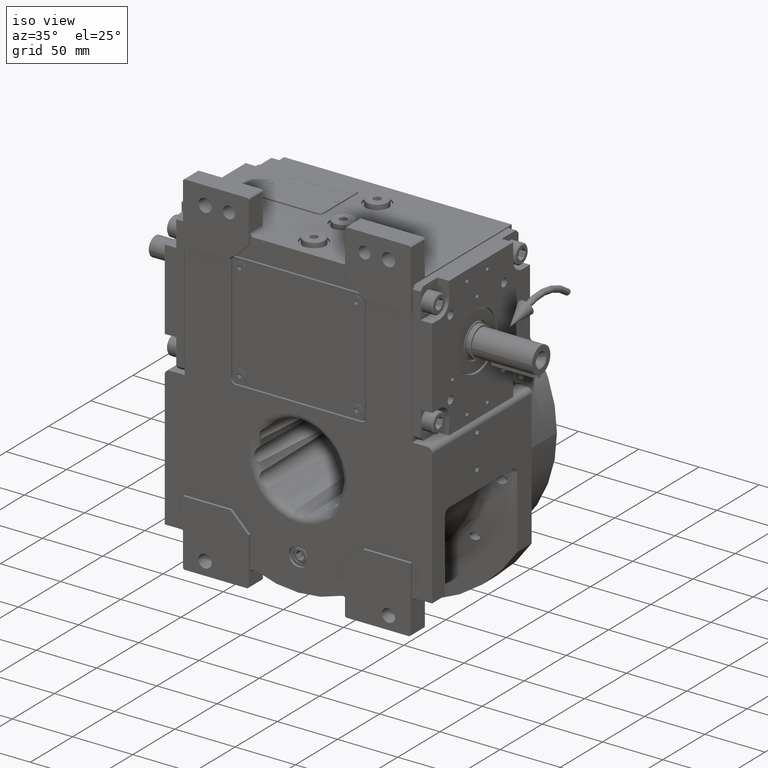
[diagram: clean part render]
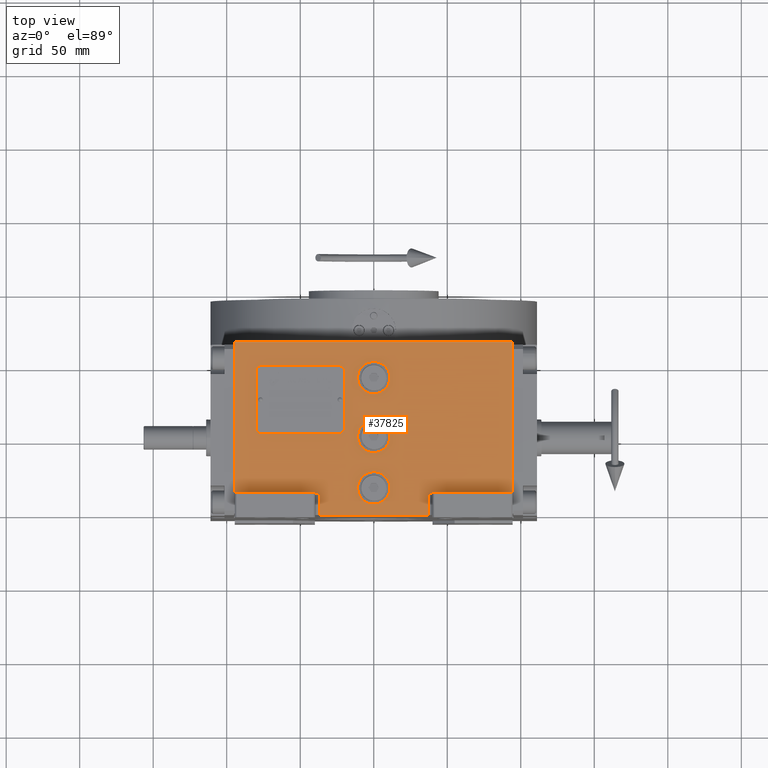
[diagram: tour spotlight — one face highlighted and labeled with its STEP entity id]
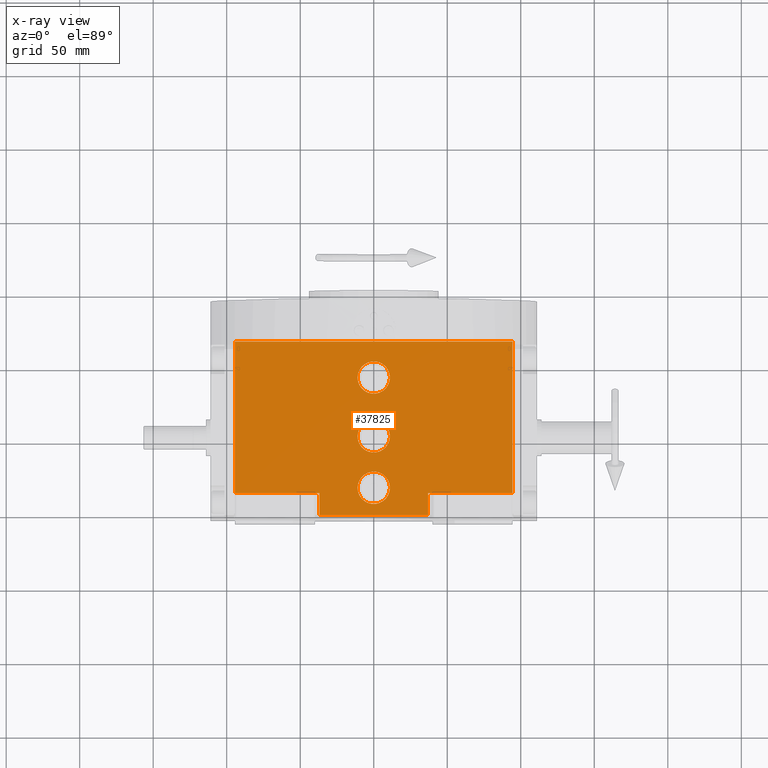
[diagram: x-ray of the same camera — body ghosted, this tour face saturated]
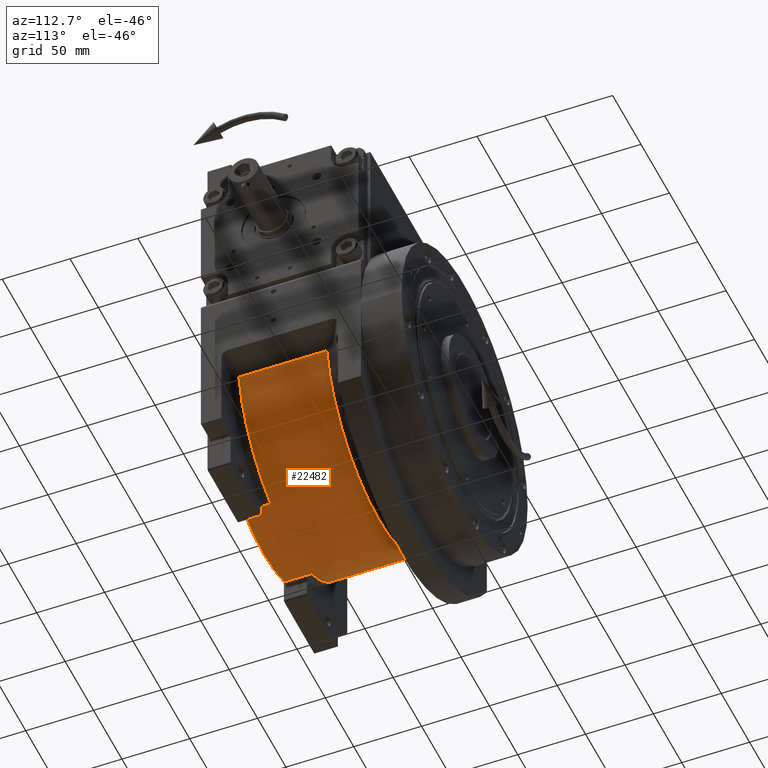
[diagram: tour spotlight — one face highlighted and labeled with its STEP entity id]
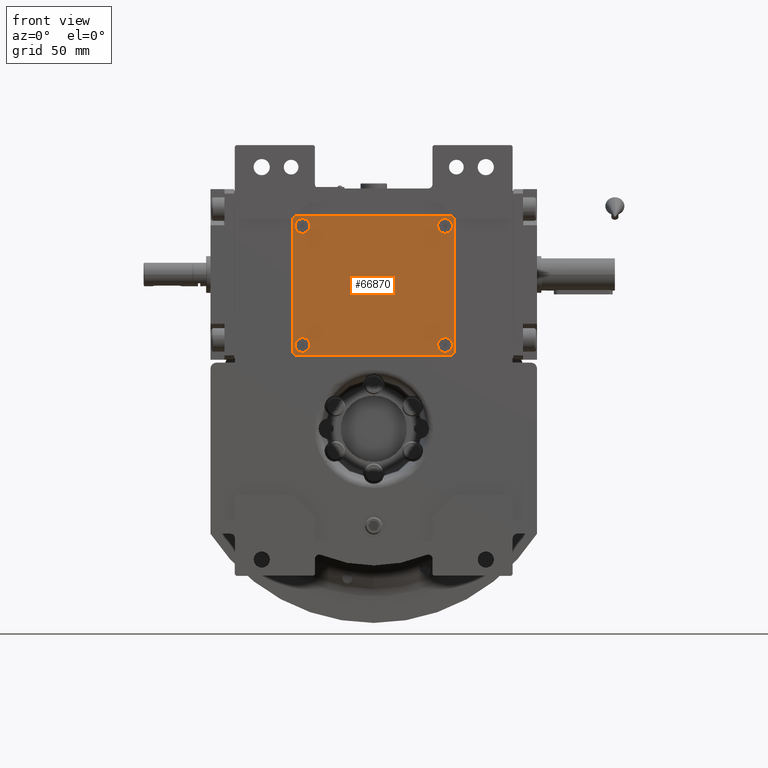
[diagram: tour spotlight — one face highlighted and labeled with its STEP entity id]
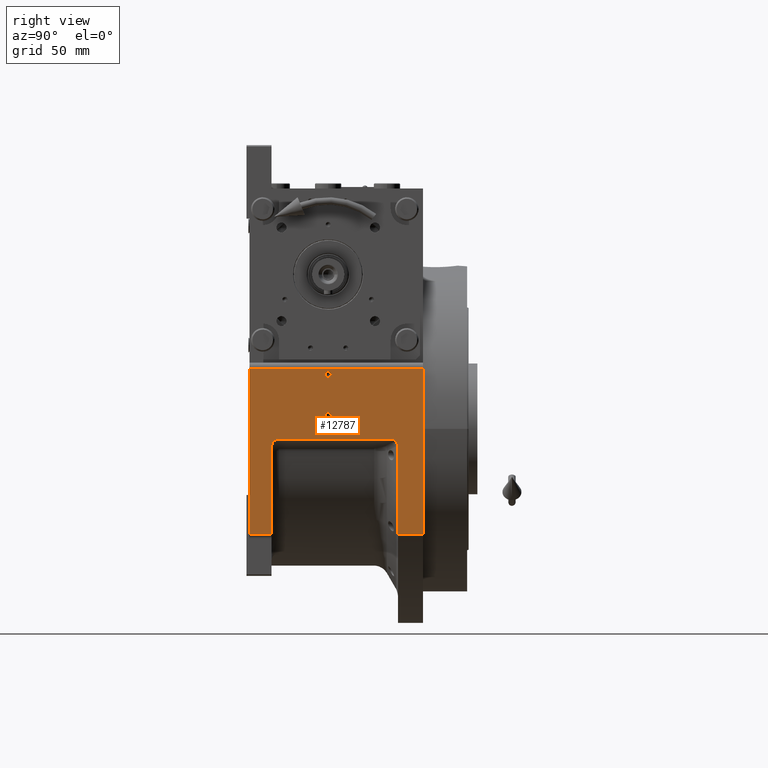
[diagram: tour spotlight — one face highlighted and labeled with its STEP entity id]
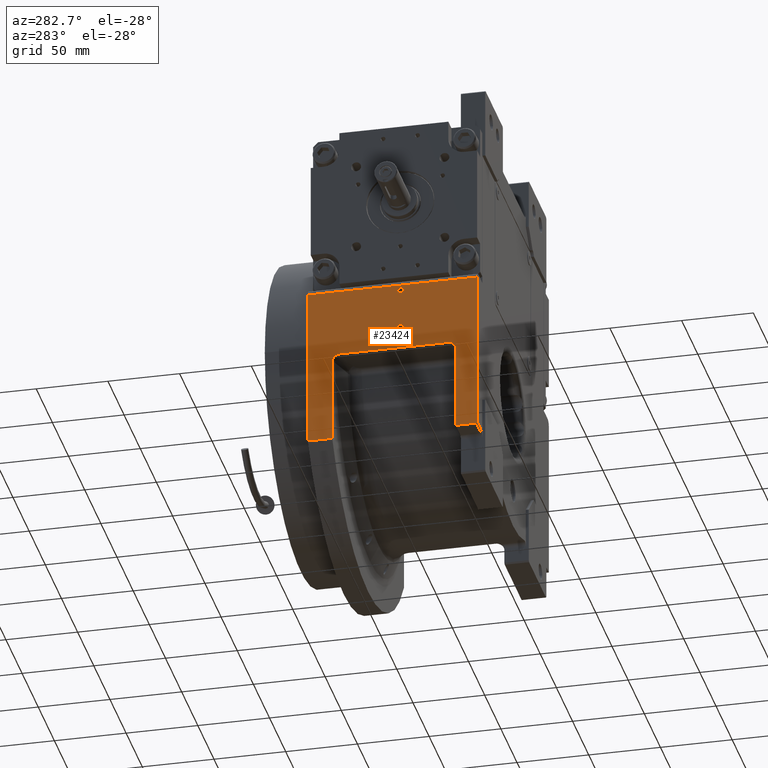
[diagram: tour spotlight — one face highlighted and labeled with its STEP entity id]
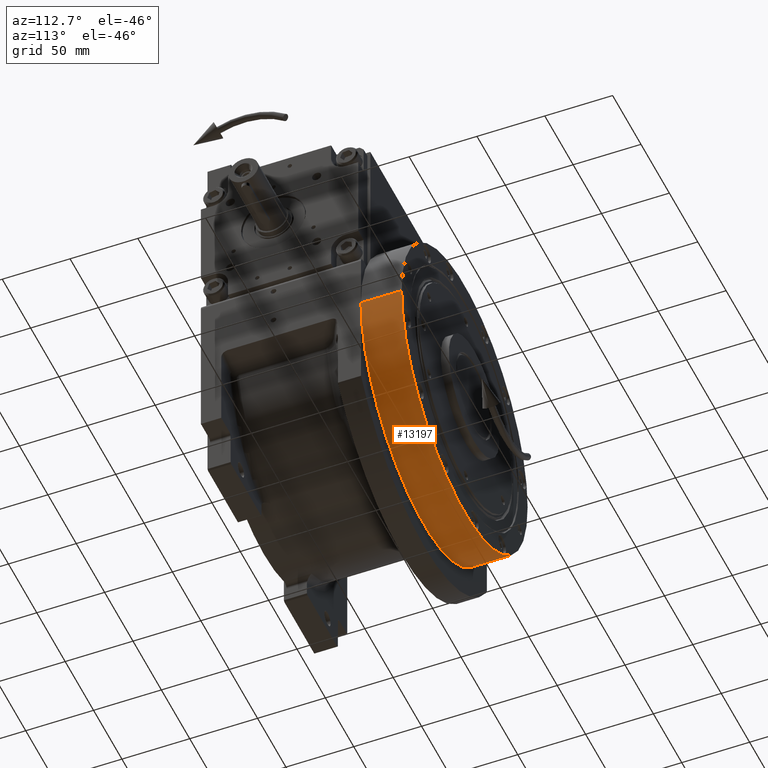
[diagram: tour spotlight — one face highlighted and labeled with its STEP entity id]
A machine part: a face-by-face anatomy tour. The part has 1980 B-rep faces; the first image is the clean iso view, then the 6 largest visible faces are spotlighted one at a time (largest first), each with its STEP entity span.

Face 1 — top view, entity #37825. An x-ray twin of the same camera follows (body ghosted, this face saturated) — the face is partly hidden behind the body. In plain terms, the highlighted planar face has unit normal (0, 0, 1).
Definition (entity closure, byte-faithful):
#1150 = LINE ( 'NONE', #48124, #8689 ) ;
#1442 = DIRECTION ( 'NONE',  ( 1.000000000000000000, 0.000000000000000000, 0.000000000000000000 ) ) ;
#2376 = DIRECTION ( 'NONE',  ( 1.000000000000000000, 0.000000000000000000, 0.000000000000000000 ) ) ;
#3191 = CARTESIAN_POINT ( 'NONE',  ( 36.99999999999934630, -38.50000000000000000, 163.5000000000000000 ) ) ;
#3794 = CARTESIAN_POINT ( 'NONE',  ( 94.50000000000000000, -38.50000000000000000, 163.5000000000000000 ) ) ;
#4202 = CARTESIAN_POINT ( 'NONE',  ( -94.50000000000000000, -38.50000000000000000, 163.5000000000000000 ) ) ;
#4599 = ORIENTED_EDGE ( 'NONE', *, *, #18886, .F. ) ;
#5062 = CARTESIAN_POINT ( 'NONE',  ( -36.99999999999929656, -53.50000000000000000, 163.5000000000000000 ) ) ;
#5625 = CARTESIAN_POINT ( 'NONE',  ( -94.50000000000000000, -53.50000000000000000, 163.5000000000000000 ) ) ;
#6973 = DIRECTION ( 'NONE',  ( 0.000000000000000000, 0.000000000000000000, 1.000000000000000000 ) ) ;
#7711 = DIRECTION ( 'NONE',  ( 0.000000000000000000, 1.000000000000000000, 0.000000000000000000 ) ) ;
#8561 = CIRCLE ( 'NONE', #64765, 11.00000000000000000 ) ;
#8689 = VECTOR ( 'NONE', #32596, 1000.000000000000000 ) ;
#8752 = VERTEX_POINT ( 'NONE', #57564 ) ;
#9046 = ORIENTED_EDGE ( 'NONE', *, *, #27290, .T. ) ;
#9949 = CARTESIAN_POINT ( 'NONE',  ( 11.00000000000000000, 40.00000000000000000, 163.5000000000000000 ) ) ;
#10926 = ORIENTED_EDGE ( 'NONE', *, *, #39350, .F. ) ;
#11784 = LINE ( 'NONE', #17960, #22828 ) ;
#11800 = FACE_BOUND ( 'NONE', #62603, .T. ) ;
#12049 = DIRECTION ( 'NONE',  ( 1.000000000000000000, 0.000000000000000000, 0.000000000000000000 ) ) ;
#14199 = DIRECTION ( 'NONE',  ( 1.000000000000000000, 0.000000000000000000, 0.000000000000000000 ) ) ;
#14778 = AXIS2_PLACEMENT_3D ( 'NONE', #64357, #37502, #32309 ) ;
#15158 = CIRCLE ( 'NONE', #44956, 11.00000000000000000 ) ;
#15554 = ORIENTED_EDGE ( 'NONE', *, *, #35246, .F. ) ;
#15860 = VERTEX_POINT ( 'NONE', #50231 ) ;
#16538 = VECTOR ( 'NONE', #14199, 1000.000000000000000 ) ;
#16641 = FACE_OUTER_BOUND ( 'NONE', #32269, .T. ) ;
#17960 = CARTESIAN_POINT ( 'NONE',  ( 36.99999999999934630, -38.50000000000000000, 163.5000000000000000 ) ) ;
#18808 = CARTESIAN_POINT ( 'NONE',  ( -36.99999999999929656, -53.50000000000000000, 163.5000000000000000 ) ) ;
#18886 = EDGE_CURVE ( 'NONE', #65248, #23066, #29807, .T. ) ;
#19831 = ORIENTED_EDGE ( 'NONE', *, *, #41896, .F. ) ;
#21168 = DIRECTION ( 'NONE',  ( 1.000000000000000000, 0.000000000000000000, 0.000000000000000000 ) ) ;
#22634 = ORIENTED_EDGE ( 'NONE', *, *, #38405, .T. ) ;
#22828 = VECTOR ( 'NONE', #28694, 1000.000000000000000 ) ;
#23066 = VERTEX_POINT ( 'NONE', #42506 ) ;
#24418 = VERTEX_POINT ( 'NONE', #32591 ) ;
#25126 = VERTEX_POINT ( 'NONE', #57541 ) ;
#25250 = LINE ( 'NONE', #4202, #16538 ) ;
#25392 = CIRCLE ( 'NONE', #34224, 11.00000000000000000 ) ;
#25892 = EDGE_CURVE ( 'NONE', #24418, #50786, #55349, .T. ) ;
#27222 = EDGE_CURVE ( 'NONE', #63159, #8752, #63818, .T. ) ;
#27290 = EDGE_CURVE ( 'NONE', #50786, #23066, #1150, .T. ) ;
#27660 = ORIENTED_EDGE ( 'NONE', *, *, #37937, .F. ) ;
#27948 = VECTOR ( 'NONE', #7711, 1000.000000000000000 ) ;
#27990 = AXIS2_PLACEMENT_3D ( 'NONE', #60461, #6973, #28033 ) ;
#28033 = DIRECTION ( 'NONE',  ( -1.000000000000000000, 0.000000000000000000, 0.000000000000000000 ) ) ;
#28694 = DIRECTION ( 'NONE',  ( 0.000000000000000000, -1.000000000000000000, 0.000000000000000000 ) ) ;
#29402 = VERTEX_POINT ( 'NONE', #54516 ) ;
#29807 = LINE ( 'NONE', #30141, #61856 ) ;
#30141 = CARTESIAN_POINT ( 'NONE',  ( -94.50000000000000000, 64.50000000000000000, 163.5000000000000000 ) ) ;
#31895 = EDGE_CURVE ( 'NONE', #48418, #63670, #25392, .T. ) ;
#32269 = EDGE_LOOP ( 'NONE', ( #22634, #66187, #68257, #9046, #4599, #15554, #67870, #10926 ) ) ;
#32309 = DIRECTION ( 'NONE',  ( -1.000000000000000000, 0.000000000000000000, 0.000000000000000000 ) ) ;
#32591 = CARTESIAN_POINT ( 'NONE',  ( 36.99999999999934630, -38.50000000000000000, 163.5000000000000000 ) ) ;
#32596 = DIRECTION ( 'NONE',  ( 0.000000000000000000, 1.000000000000000000, 0.000000000000000000 ) ) ;
#33961 = LINE ( 'NONE', #55013, #27948 ) ;
#34224 = AXIS2_PLACEMENT_3D ( 'NONE', #37654, #49340, #12049 ) ;
#34289 = DIRECTION ( 'NONE',  ( 1.000000000000000000, 0.000000000000000000, 0.000000000000000000 ) ) ;
#34385 = LINE ( 'NONE', #18808, #56823 ) ;
#35246 = EDGE_CURVE ( 'NONE', #15860, #65248, #33961, .T. ) ;
#36048 = VERTEX_POINT ( 'NONE', #47295 ) ;
#37108 = CARTESIAN_POINT ( 'NONE',  ( 0.000000000000000000, -35.00000000000000000, 163.5000000000000000 ) ) ;
#37502 = DIRECTION ( 'NONE',  ( 0.000000000000000000, 0.000000000000000000, 1.000000000000000000 ) ) ;
#37654 = CARTESIAN_POINT ( 'NONE',  ( 0.000000000000000000, 40.00000000000000000, 163.5000000000000000 ) ) ;
#37739 = PLANE ( 'NONE',  #53393 ) ;
#37825 = ADVANCED_FACE ( 'NONE', ( #58107, #63929, #11800, #16641 ), #37739, .T. ) ;
#37937 = EDGE_CURVE ( 'NONE', #25126, #29402, #48933, .T. ) ;
#37953 = ORIENTED_EDGE ( 'NONE', *, *, #45304, .F. ) ;
#38184 = ORIENTED_EDGE ( 'NONE', *, *, #50713, .F. ) ;
#38405 = EDGE_CURVE ( 'NONE', #62799, #36048, #65531, .T. ) ;
#38511 = ORIENTED_EDGE ( 'NONE', *, *, #31895, .F. ) ;
#38887 = DIRECTION ( 'NONE',  ( 0.000000000000000000, 1.000000000000000000, 0.000000000000000000 ) ) ;
#39350 = EDGE_CURVE ( 'NONE', #62799, #41449, #34385, .T. ) ;
#39721 = DIRECTION ( 'NONE',  ( 1.000000000000000000, 0.000000000000000000, 0.000000000000000000 ) ) ;
#41379 = EDGE_LOOP ( 'NONE', ( #38184, #27660 ) ) ;
#41395 = EDGE_CURVE ( 'NONE', #24418, #36048, #11784, .T. ) ;
#41449 = VERTEX_POINT ( 'NONE', #67323 ) ;
#41634 = VECTOR ( 'NONE', #34289, 1000.000000000000000 ) ;
#41818 = AXIS2_PLACEMENT_3D ( 'NONE', #37108, #47787, #21168 ) ;
#41896 = EDGE_CURVE ( 'NONE', #63670, #48418, #8561, .T. ) ;
#42506 = CARTESIAN_POINT ( 'NONE',  ( 94.50000000000000000, 64.50000000000000000, 163.5000000000000000 ) ) ;
#42611 = CARTESIAN_POINT ( 'NONE',  ( 0.000000000000000000, 0.000000000000000000, 163.5000000000000000 ) ) ;
#44956 = AXIS2_PLACEMENT_3D ( 'NONE', #42611, #60416, #39721 ) ;
#45304 = EDGE_CURVE ( 'NONE', #8752, #63159, #50084, .T. ) ;
#46033 = DIRECTION ( 'NONE',  ( 1.000000000000000000, 0.000000000000000000, 0.000000000000000000 ) ) ;
#46627 = ORIENTED_EDGE ( 'NONE', *, *, #27222, .F. ) ;
#46829 = VECTOR ( 'NONE', #2376, 1000.000000000000000 ) ;
#47295 = CARTESIAN_POINT ( 'NONE',  ( 36.99999999999934630, -53.50000000000000000, 163.5000000000000000 ) ) ;
#47787 = DIRECTION ( 'NONE',  ( 0.000000000000000000, 0.000000000000000000, 1.000000000000000000 ) ) ;
#48124 = CARTESIAN_POINT ( 'NONE',  ( 94.50000000000000000, -38.50000000000000000, 163.5000000000000000 ) ) ;
#48418 = VERTEX_POINT ( 'NONE', #9949 ) ;
#48501 = DIRECTION ( 'NONE',  ( 0.000000000000000000, 0.000000000000000000, 1.000000000000000000 ) ) ;
#48933 = CIRCLE ( 'NONE', #27990, 11.00000000000000000 ) ;
#49340 = DIRECTION ( 'NONE',  ( 0.000000000000000000, 0.000000000000000000, 1.000000000000000000 ) ) ;
#49682 = CARTESIAN_POINT ( 'NONE',  ( -36.99999999999929656, -53.50000000000000000, 163.5000000000000000 ) ) ;
#49862 = EDGE_LOOP ( 'NONE', ( #46627, #37953 ) ) ;
#50084 = CIRCLE ( 'NONE', #14778, 11.00000000000000000 ) ;
#50231 = CARTESIAN_POINT ( 'NONE',  ( -94.50000000000000000, -38.50000000000000000, 163.5000000000000000 ) ) ;
#50713 = EDGE_CURVE ( 'NONE', #29402, #25126, #15158, .T. ) ;
#50786 = VERTEX_POINT ( 'NONE', #3794 ) ;
#52689 = CARTESIAN_POINT ( 'NONE',  ( 0.000000000000000000, 40.00000000000000000, 163.5000000000000000 ) ) ;
#53188 = EDGE_CURVE ( 'NONE', #15860, #41449, #25250, .T. ) ;
#53393 = AXIS2_PLACEMENT_3D ( 'NONE', #5625, #58778, #1442 ) ;
#54516 = CARTESIAN_POINT ( 'NONE',  ( 11.00000000000000000, -1.179289943096200059E-15, 163.5000000000000000 ) ) ;
#55013 = CARTESIAN_POINT ( 'NONE',  ( -94.50000000000000000, -38.50000000000000000, 163.5000000000000000 ) ) ;
#55349 = LINE ( 'NONE', #3191, #41634 ) ;
#56823 = VECTOR ( 'NONE', #38887, 1000.000000000000000 ) ;
#57371 = CARTESIAN_POINT ( 'NONE',  ( -94.50000000000000000, 64.50000000000000000, 163.5000000000000000 ) ) ;
#57541 = CARTESIAN_POINT ( 'NONE',  ( -11.00000000000000000, 0.000000000000000000, 163.5000000000000000 ) ) ;
#57564 = CARTESIAN_POINT ( 'NONE',  ( -11.00000000000000000, -35.00000000000000000, 163.5000000000000000 ) ) ;
#58107 = FACE_BOUND ( 'NONE', #41379, .T. ) ;
#58531 = DIRECTION ( 'NONE',  ( -1.000000000000000000, 0.000000000000000000, 0.000000000000000000 ) ) ;
#58778 = DIRECTION ( 'NONE',  ( 0.000000000000000000, 0.000000000000000000, 1.000000000000000000 ) ) ;
#60416 = DIRECTION ( 'NONE',  ( 0.000000000000000000, 0.000000000000000000, 1.000000000000000000 ) ) ;
#60461 = CARTESIAN_POINT ( 'NONE',  ( 0.000000000000000000, 0.000000000000000000, 163.5000000000000000 ) ) ;
#61856 = VECTOR ( 'NONE', #46033, 1000.000000000000000 ) ;
#62603 = EDGE_LOOP ( 'NONE', ( #38511, #19831 ) ) ;
#62799 = VERTEX_POINT ( 'NONE', #5062 ) ;
#63159 = VERTEX_POINT ( 'NONE', #65394 ) ;
#63670 = VERTEX_POINT ( 'NONE', #67450 ) ;
#63818 = CIRCLE ( 'NONE', #41818, 11.00000000000000000 ) ;
#63929 = FACE_BOUND ( 'NONE', #49862, .T. ) ;
#64357 = CARTESIAN_POINT ( 'NONE',  ( 0.000000000000000000, -35.00000000000000000, 163.5000000000000000 ) ) ;
#64765 = AXIS2_PLACEMENT_3D ( 'NONE', #52689, #48501, #58531 ) ;
#65248 = VERTEX_POINT ( 'NONE', #57371 ) ;
#65394 = CARTESIAN_POINT ( 'NONE',  ( 11.00000000000000000, -35.00000000000000000, 163.5000000000000000 ) ) ;
#65531 = LINE ( 'NONE', #49682, #46829 ) ;
#66187 = ORIENTED_EDGE ( 'NONE', *, *, #41395, .F. ) ;
#67323 = CARTESIAN_POINT ( 'NONE',  ( -36.99999999999929656, -38.50000000000000000, 163.5000000000000000 ) ) ;
#67450 = CARTESIAN_POINT ( 'NONE',  ( -11.00000000000000000, 40.00000000000000000, 163.5000000000000000 ) ) ;
#67870 = ORIENTED_EDGE ( 'NONE', *, *, #53188, .T. ) ;
#68257 = ORIENTED_EDGE ( 'NONE', *, *, #25892, .T. ) ;

Face 2 — auxiliary view, entity #22482. In plain terms, the highlighted cylindrical surface (partial cylindrical patch) has radius 93 mm, axis along (0, 1, 0).
Definition (entity closure, byte-faithful):
#1300 = CIRCLE ( 'NONE', #32179, 93.00000000000001421 ) ;
#1548 = EDGE_CURVE ( 'NONE', #44406, #28407, #15990, .T. ) ;
#2622 = EDGE_CURVE ( 'NONE', #28407, #54209, #47503, .T. ) ;
#4478 = EDGE_CURVE ( 'NONE', #5235, #12806, #1300, .T. ) ;
#5111 = DIRECTION ( 'NONE',  ( 0.000000000000000000, 1.000000000000000000, 0.000000000000000000 ) ) ;
#5235 = VERTEX_POINT ( 'NONE', #20561 ) ;
#5639 = DIRECTION ( 'NONE',  ( 0.9865608847878558629, 0.000000000000000000, -0.1633940653959109757 ) ) ;
#6011 = AXIS2_PLACEMENT_3D ( 'NONE', #6412, #43334, #64371 ) ;
#6412 = CARTESIAN_POINT ( 'NONE',  ( 1.421085471520200056E-14, -53.50000000000000000, -4.263256414560599853E-14 ) ) ;
#7293 = ORIENTED_EDGE ( 'NONE', *, *, #23559, .T. ) ;
#7989 = EDGE_CURVE ( 'NONE', #24621, #29201, #62173, .T. ) ;
#10621 = FACE_OUTER_BOUND ( 'NONE', #43709, .T. ) ;
#11903 = VECTOR ( 'NONE', #21554, 1000.000000000000000 ) ;
#12806 = VERTEX_POINT ( 'NONE', #66798 ) ;
#14177 = EDGE_CURVE ( 'NONE', #30306, #5235, #47480, .T. ) ;
#15711 = AXIS2_PLACEMENT_3D ( 'NONE', #36903, #5111, #31022 ) ;
#15990 = CIRCLE ( 'NONE', #65594, 93.00000000000001421 ) ;
#17096 = CARTESIAN_POINT ( 'NONE',  ( -5.684341886080798963E-14, -33.50000000000000000, -4.973799150320699408E-14 ) ) ;
#17619 = ORIENTED_EDGE ( 'NONE', *, *, #1548, .T. ) ;
#18014 = CARTESIAN_POINT ( 'NONE',  ( -91.75030103113060420, 31.21878279875124917, -15.19503959111690072 ) ) ;
#18602 = AXIS2_PLACEMENT_3D ( 'NONE', #24511, #24863, #30055 ) ;
#19209 = DIRECTION ( 'NONE',  ( 1.776356839400250070E-15, 1.000000000000000000, -7.105427357601000281E-16 ) ) ;
#20069 = ORIENTED_EDGE ( 'NONE', *, *, #59172, .F. ) ;
#20561 = CARTESIAN_POINT ( 'NONE',  ( 91.75016228514499517, -33.50000000000000000, -15.19564808257825028 ) ) ;
#21554 = DIRECTION ( 'NONE',  ( 0.000000000000000000, -1.000000000000000000, 0.000000000000000000 ) ) ;
#22482 = ADVANCED_FACE ( 'NONE', ( #10621 ), #41723, .T. ) ;
#22957 = DIRECTION ( 'NONE',  ( 0.000000000000000000, 1.000000000000000000, 0.000000000000000000 ) ) ;
#23559 = EDGE_CURVE ( 'NONE', #24621, #44406, #23706, .T. ) ;
#23706 = LINE ( 'NONE', #66505, #52276 ) ;
#24511 = CARTESIAN_POINT ( 'NONE',  ( 1.421085471520200056E-14, 31.21878281274215183, 0.000000000000000000 ) ) ;
#24621 = VERTEX_POINT ( 'NONE', #33941 ) ;
#24731 = ORIENTED_EDGE ( 'NONE', *, *, #14177, .T. ) ;
#24863 = DIRECTION ( 'NONE',  ( 5.743225055535190204E-15, 1.000000000000000000, 2.439003765979129920E-14 ) ) ;
#28021 = ORIENTED_EDGE ( 'NONE', *, *, #47855, .T. ) ;
#28243 = CARTESIAN_POINT ( 'NONE',  ( -91.75016228508779648, -33.50000000000000000, -15.19564808292360070 ) ) ;
#28407 = VERTEX_POINT ( 'NONE', #28243 ) ;
#29201 = VERTEX_POINT ( 'NONE', #50080 ) ;
#30055 = DIRECTION ( 'NONE',  ( 0.9865608847851539132, -1.678764654171103455E-15, -0.1633940654122239822 ) ) ;
#30306 = VERTEX_POINT ( 'NONE', #39149 ) ;
#31022 = DIRECTION ( 'NONE',  ( 0.000000000000000000, 0.000000000000000000, 1.000000000000000000 ) ) ;
#32179 = AXIS2_PLACEMENT_3D ( 'NONE', #43582, #64614, #5639 ) ;
#33941 = CARTESIAN_POINT ( 'NONE',  ( -35.84375000000000000, -53.50000000000000000, -85.81506619433150718 ) ) ;
#36903 = CARTESIAN_POINT ( 'NONE',  ( -4.517455316885850268E-28, -53.50000000000000000, 0.000000000000000000 ) ) ;
#39149 = CARTESIAN_POINT ( 'NONE',  ( 91.75016228501930016, 31.21878281274259948, -15.19564808333685058 ) ) ;
#41723 = CYLINDRICAL_SURFACE ( 'NONE', #15711, 93.00000000000000000 ) ;
#41809 = LINE ( 'NONE', #47673, #62293 ) ;
#42502 = DIRECTION ( 'NONE',  ( 0.000000000000000000, -1.000000000000000000, 0.000000000000000000 ) ) ;
#43334 = DIRECTION ( 'NONE',  ( 0.000000000000000000, -1.000000000000000000, 0.000000000000000000 ) ) ;
#43582 = CARTESIAN_POINT ( 'NONE',  ( 1.421085471520200056E-14, -33.50000000000000000, 1.421085471520200056E-14 ) ) ;
#43709 = EDGE_LOOP ( 'NONE', ( #44403, #7293, #17619, #55524, #20069, #24731, #45096, #28021 ) ) ;
#43904 = CARTESIAN_POINT ( 'NONE',  ( -91.75016228501930016, -33.50000000000000000, -15.19564808333695183 ) ) ;
#44403 = ORIENTED_EDGE ( 'NONE', *, *, #7989, .F. ) ;
#44406 = VERTEX_POINT ( 'NONE', #59362 ) ;
#45096 = ORIENTED_EDGE ( 'NONE', *, *, #4478, .T. ) ;
#47480 = LINE ( 'NONE', #47822, #11903 ) ;
#47503 = LINE ( 'NONE', #43904, #64521 ) ;
#47673 = CARTESIAN_POINT ( 'NONE',  ( 35.84375000000000000, -33.50000000000000000, -85.81506619433150718 ) ) ;
#47822 = CARTESIAN_POINT ( 'NONE',  ( 91.75016228501930016, 31.21878281274199907, -15.19564808333685058 ) ) ;
#47855 = EDGE_CURVE ( 'NONE', #12806, #29201, #41809, .T. ) ;
#48400 = CIRCLE ( 'NONE', #18602, 93.00000000000001421 ) ;
#49422 = DIRECTION ( 'NONE',  ( 0.000000000000000000, 1.000000000000000000, 0.000000000000000000 ) ) ;
#50080 = CARTESIAN_POINT ( 'NONE',  ( 35.84375000000000000, -53.50000000000000000, -85.81506619433150718 ) ) ;
#52276 = VECTOR ( 'NONE', #19209, 1000.000000000000000 ) ;
#54209 = VERTEX_POINT ( 'NONE', #18014 ) ;
#55524 = ORIENTED_EDGE ( 'NONE', *, *, #2622, .T. ) ;
#59172 = EDGE_CURVE ( 'NONE', #30306, #54209, #48400, .T. ) ;
#59362 = CARTESIAN_POINT ( 'NONE',  ( -35.84375000000000000, -33.50000000000000000, -85.81506619433150718 ) ) ;
#62173 = CIRCLE ( 'NONE', #6011, 92.99999999999995737 ) ;
#62293 = VECTOR ( 'NONE', #42502, 1000.000000000000000 ) ;
#64371 = DIRECTION ( 'NONE',  ( -0.3854166666666672403, 0.000000000000000000, -0.9227426472508764022 ) ) ;
#64521 = VECTOR ( 'NONE', #49422, 1000.000000000000000 ) ;
#64614 = DIRECTION ( 'NONE',  ( 0.000000000000000000, 1.000000000000000000, 0.000000000000000000 ) ) ;
#65065 = DIRECTION ( 'NONE',  ( -0.3854166666666659080, 0.000000000000000000, -0.9227426472508768462 ) ) ;
#65594 = AXIS2_PLACEMENT_3D ( 'NONE', #17096, #22957, #65065 ) ;
#66505 = CARTESIAN_POINT ( 'NONE',  ( -35.84375000000000000, -53.50000000000000000, -85.81506619433150718 ) ) ;
#66798 = CARTESIAN_POINT ( 'NONE',  ( 35.84375000000000000, -33.50000000000000000, -85.81506619433150718 ) ) ;

Face 3 — front view, entity #66870. In plain terms, the highlighted planar face has unit normal (0, -1, -0).
Definition (entity closure, byte-faithful):
#166 = VERTEX_POINT ( 'NONE', #53062 ) ;
#366 = DIRECTION ( 'NONE',  ( 9.255241265799875595E-31, 0.000000000000000000, 1.000000000000000000 ) ) ;
#426 = DIRECTION ( 'NONE',  ( 9.255241265799875595E-31, 0.000000000000000000, 1.000000000000000000 ) ) ;
#596 = CARTESIAN_POINT ( 'NONE',  ( -54.99999999999973710, 45.50000000000000000, 3.000000000000266454 ) ) ;
#1267 = VERTEX_POINT ( 'NONE', #61013 ) ;
#1408 = VECTOR ( 'NONE', #42183, 1000.000000000000000 ) ;
#1413 = AXIS2_PLACEMENT_3D ( 'NONE', #32546, #426, #26677 ) ;
#1420 = VERTEX_POINT ( 'NONE', #48882 ) ;
#1735 = CARTESIAN_POINT ( 'NONE',  ( -53.00000000000000000, -47.49999999999973710, 3.000000000000266454 ) ) ;
#2255 = DIRECTION ( 'NONE',  ( 9.255241265799875595E-31, 0.000000000000000000, 1.000000000000000000 ) ) ;
#2409 = CARTESIAN_POINT ( 'NONE',  ( 53.00000000000026290, 47.50000000000000000, 3.000000000000002665 ) ) ;
#2423 = DIRECTION ( 'NONE',  ( 1.000000000000000000, 9.367723249499515189E-31, 9.255241265799875595E-31 ) ) ;
#2553 = CARTESIAN_POINT ( 'NONE',  ( 55.00000000000000000, -45.50000000000000000, 3.000000000000002665 ) ) ;
#3205 = CARTESIAN_POINT ( 'NONE',  ( 44.00000000000026290, 40.49999999999999289, 3.000000000000002665 ) ) ;
#3458 = DIRECTION ( 'NONE',  ( -9.255241265799875595E-31, -1.734010775707216474E-60, 1.000000000000000000 ) ) ;
#4365 = DIRECTION ( 'NONE',  ( 9.255241265799875595E-31, 0.000000000000000000, 1.000000000000000000 ) ) ;
#4838 = CARTESIAN_POINT ( 'NONE',  ( 53.00000000000026290, 47.50000000000000000, 3.000000000000002665 ) ) ;
#4853 = ORIENTED_EDGE ( 'NONE', *, *, #21576, .F. ) ;
#4987 = AXIS2_PLACEMENT_3D ( 'NONE', #68027, #366, #52871 ) ;
#5833 = EDGE_CURVE ( 'NONE', #48054, #166, #7760, .T. ) ;
#5885 = CARTESIAN_POINT ( 'NONE',  ( -52.99999999999973710, 47.50000000000000000, 3.000000000000259348 ) ) ;
#5955 = EDGE_LOOP ( 'NONE', ( #34344, #36098, #7641, #66537, #16388, #7411, #39906, #43571 ) ) ;
#6628 = VERTEX_POINT ( 'NONE', #13799 ) ;
#7290 = CARTESIAN_POINT ( 'NONE',  ( 48.50000000000026290, -40.50000000000000000, 2.999999999999738876 ) ) ;
#7397 = VECTOR ( 'NONE', #67973, 1000.000000000000114 ) ;
#7411 = ORIENTED_EDGE ( 'NONE', *, *, #5833, .T. ) ;
#7582 = CARTESIAN_POINT ( 'NONE',  ( -55.00000000000000000, -45.49999999999973710, 3.000000000000266454 ) ) ;
#7618 = FACE_BOUND ( 'NONE', #12296, .T. ) ;
#7641 = ORIENTED_EDGE ( 'NONE', *, *, #36991, .T. ) ;
#7760 = LINE ( 'NONE', #59881, #41260 ) ;
#8650 = EDGE_CURVE ( 'NONE', #51581, #48054, #30657, .T. ) ;
#8964 = CARTESIAN_POINT ( 'NONE',  ( 55.00000000000000000, -45.50000000000000000, 3.000000000000002665 ) ) ;
#9847 = EDGE_CURVE ( 'NONE', #24689, #41944, #12658, .T. ) ;
#9916 = DIRECTION ( 'NONE',  ( -9.367723249499515189E-31, -1.000000000000000000, 0.000000000000000000 ) ) ;
#10778 = CARTESIAN_POINT ( 'NONE',  ( -48.49999999999973710, 40.49999999999999289, 3.000000000000259348 ) ) ;
#10792 = VERTEX_POINT ( 'NONE', #53147 ) ;
#11399 = EDGE_LOOP ( 'NONE', ( #49057, #4853 ) ) ;
#11684 = LINE ( 'NONE', #49311, #62426 ) ;
#12027 = DIRECTION ( 'NONE',  ( 1.000000000000000000, 1.541976423090496028E-15, 0.000000000000000000 ) ) ;
#12281 = EDGE_CURVE ( 'NONE', #33306, #51581, #11684, .T. ) ;
#12296 = EDGE_LOOP ( 'NONE', ( #52003, #48659 ) ) ;
#12312 = CARTESIAN_POINT ( 'NONE',  ( 53.00000000000000000, -47.50000000000000000, 3.000000000000002665 ) ) ;
#12658 = CIRCLE ( 'NONE', #27042, 4.499999999999997335 ) ;
#13799 = CARTESIAN_POINT ( 'NONE',  ( 44.00000000000026290, -40.50000000000000000, 2.999999999999995559 ) ) ;
#15495 = LINE ( 'NONE', #25870, #7397 ) ;
#15638 = ORIENTED_EDGE ( 'NONE', *, *, #33994, .F. ) ;
#15725 = CARTESIAN_POINT ( 'NONE',  ( 48.50000000000026290, 40.49999999999999289, 3.000000000000002665 ) ) ;
#16388 = ORIENTED_EDGE ( 'NONE', *, *, #8650, .T. ) ;
#17529 = CARTESIAN_POINT ( 'NONE',  ( 48.50000000000026290, 40.49999999999999289, 3.000000000000002665 ) ) ;
#17940 = FACE_BOUND ( 'NONE', #22976, .T. ) ;
#18112 = DIRECTION ( 'NONE',  ( 1.000000000000000000, 1.541976423090496028E-15, 0.000000000000000000 ) ) ;
#18299 = DIRECTION ( 'NONE',  ( 9.255241265799875595E-31, 0.000000000000000000, 1.000000000000000000 ) ) ;
#18419 = EDGE_CURVE ( 'NONE', #65577, #1420, #33329, .T. ) ;
#18502 = CIRCLE ( 'NONE', #58231, 4.499999999999997335 ) ;
#20757 = DIRECTION ( 'NONE',  ( 9.255241265799875595E-31, 0.000000000000000000, 1.000000000000000000 ) ) ;
#21576 = EDGE_CURVE ( 'NONE', #41944, #24689, #44512, .T. ) ;
#22422 = VECTOR ( 'NONE', #9916, 1000.000000000000000 ) ;
#22976 = EDGE_LOOP ( 'NONE', ( #26254, #15638 ) ) ;
#23242 = ORIENTED_EDGE ( 'NONE', *, *, #57998, .F. ) ;
#23621 = AXIS2_PLACEMENT_3D ( 'NONE', #50774, #3458, #2423 ) ;
#24441 = AXIS2_PLACEMENT_3D ( 'NONE', #15725, #4365, #36495 ) ;
#24689 = VERTEX_POINT ( 'NONE', #30457 ) ;
#25870 = CARTESIAN_POINT ( 'NONE',  ( 55.00000000000026290, 45.50000000000000000, 3.000000000000002665 ) ) ;
#25899 = DIRECTION ( 'NONE',  ( -1.000000000000000000, -9.367723249499515189E-31, -9.255241265799875595E-31 ) ) ;
#26254 = ORIENTED_EDGE ( 'NONE', *, *, #40052, .F. ) ;
#26677 = DIRECTION ( 'NONE',  ( -1.000000000000000000, -1.541976423090496028E-15, 0.000000000000000000 ) ) ;
#27042 = AXIS2_PLACEMENT_3D ( 'NONE', #10778, #37060, #32548 ) ;
#28501 = CARTESIAN_POINT ( 'NONE',  ( 48.50000000000026290, -40.50000000000000000, 2.999999999999738876 ) ) ;
#28676 = PLANE ( 'NONE',  #23621 ) ;
#28689 = DIRECTION ( 'NONE',  ( -1.000000000000000000, -1.541976423090496028E-15, 0.000000000000000000 ) ) ;
#30166 = DIRECTION ( 'NONE',  ( -1.000000000000000000, -1.541976423090496028E-15, 0.000000000000000000 ) ) ;
#30457 = CARTESIAN_POINT ( 'NONE',  ( -43.99999999999973710, 40.49999999999999289, 3.000000000000009770 ) ) ;
#30657 = LINE ( 'NONE', #596, #22422 ) ;
#31419 = VECTOR ( 'NONE', #60546, 1000.000000000000114 ) ;
#32546 = CARTESIAN_POINT ( 'NONE',  ( -48.49999999999973710, -40.49999999999973710, 3.000000000000002665 ) ) ;
#32548 = DIRECTION ( 'NONE',  ( 1.000000000000000000, 1.541976423090496028E-15, 0.000000000000000000 ) ) ;
#33156 = VECTOR ( 'NONE', #33671, 1000.000000000000000 ) ;
#33306 = VERTEX_POINT ( 'NONE', #5885 ) ;
#33329 = LINE ( 'NONE', #2553, #33156 ) ;
#33425 = VECTOR ( 'NONE', #25899, 1000.000000000000000 ) ;
#33671 = DIRECTION ( 'NONE',  ( 9.367723249499515189E-31, 1.000000000000000000, 0.000000000000000000 ) ) ;
#33994 = EDGE_CURVE ( 'NONE', #35361, #66539, #57566, .T. ) ;
#34344 = ORIENTED_EDGE ( 'NONE', *, *, #18419, .T. ) ;
#34850 = ORIENTED_EDGE ( 'NONE', *, *, #42652, .F. ) ;
#35361 = VERTEX_POINT ( 'NONE', #3205 ) ;
#35942 = AXIS2_PLACEMENT_3D ( 'NONE', #17529, #20757, #12027 ) ;
#36098 = ORIENTED_EDGE ( 'NONE', *, *, #57274, .T. ) ;
#36495 = DIRECTION ( 'NONE',  ( -1.000000000000000000, -1.541976423090496028E-15, 0.000000000000000000 ) ) ;
#36729 = EDGE_CURVE ( 'NONE', #1267, #10792, #54372, .T. ) ;
#36991 = EDGE_CURVE ( 'NONE', #54608, #33306, #64167, .T. ) ;
#37060 = DIRECTION ( 'NONE',  ( 9.255241265799875595E-31, 0.000000000000000000, 1.000000000000000000 ) ) ;
#38745 = VERTEX_POINT ( 'NONE', #61331 ) ;
#38850 = DIRECTION ( 'NONE',  ( 0.7071067811865474617, -0.7071067811865474617, 3.697785493223490101E-32 ) ) ;
#39051 = FACE_BOUND ( 'NONE', #11399, .T. ) ;
#39906 = ORIENTED_EDGE ( 'NONE', *, *, #65310, .T. ) ;
#40052 = EDGE_CURVE ( 'NONE', #66539, #35361, #52504, .T. ) ;
#41260 = VECTOR ( 'NONE', #38850, 1000.000000000000114 ) ;
#41944 = VERTEX_POINT ( 'NONE', #43653 ) ;
#42183 = DIRECTION ( 'NONE',  ( 1.000000000000000000, 9.367723249499515189E-31, 9.255241265799875595E-31 ) ) ;
#42652 = EDGE_CURVE ( 'NONE', #6628, #38745, #50505, .T. ) ;
#43571 = ORIENTED_EDGE ( 'NONE', *, *, #45549, .T. ) ;
#43653 = CARTESIAN_POINT ( 'NONE',  ( -52.99999999999973710, 40.49999999999999289, 3.000000000000259348 ) ) ;
#44512 = CIRCLE ( 'NONE', #61016, 4.499999999999997335 ) ;
#44996 = CARTESIAN_POINT ( 'NONE',  ( 53.00000000000026290, 40.49999999999999289, 3.000000000000002665 ) ) ;
#45549 = EDGE_CURVE ( 'NONE', #46396, #65577, #48843, .T. ) ;
#46396 = VERTEX_POINT ( 'NONE', #12312 ) ;
#47810 = EDGE_CURVE ( 'NONE', #10792, #1267, #64492, .T. ) ;
#48040 = LINE ( 'NONE', #1735, #1408 ) ;
#48054 = VERTEX_POINT ( 'NONE', #7582 ) ;
#48659 = ORIENTED_EDGE ( 'NONE', *, *, #36729, .F. ) ;
#48843 = LINE ( 'NONE', #64691, #31419 ) ;
#48882 = CARTESIAN_POINT ( 'NONE',  ( 55.00000000000026290, 45.50000000000000000, 3.000000000000002665 ) ) ;
#49057 = ORIENTED_EDGE ( 'NONE', *, *, #9847, .F. ) ;
#49311 = CARTESIAN_POINT ( 'NONE',  ( -52.99999999999973710, 47.50000000000000000, 3.000000000000259348 ) ) ;
#50505 = CIRCLE ( 'NONE', #56034, 4.499999999999997335 ) ;
#50774 = CARTESIAN_POINT ( 'NONE',  ( 0.000000000000000000, 0.000000000000000000, 3.000000000000002665 ) ) ;
#51409 = EDGE_LOOP ( 'NONE', ( #23242, #34850 ) ) ;
#51581 = VERTEX_POINT ( 'NONE', #58122 ) ;
#51924 = DIRECTION ( 'NONE',  ( 9.255241265799875595E-31, 0.000000000000000000, 1.000000000000000000 ) ) ;
#52003 = ORIENTED_EDGE ( 'NONE', *, *, #47810, .F. ) ;
#52504 = CIRCLE ( 'NONE', #35942, 4.499999999999997335 ) ;
#52871 = DIRECTION ( 'NONE',  ( 1.000000000000000000, 1.541976423090496028E-15, 0.000000000000000000 ) ) ;
#53062 = CARTESIAN_POINT ( 'NONE',  ( -53.00000000000000000, -47.49999999999973710, 3.000000000000266454 ) ) ;
#53147 = CARTESIAN_POINT ( 'NONE',  ( -43.99999999999973710, -40.49999999999973710, 2.999999999999995559 ) ) ;
#53830 = DIRECTION ( 'NONE',  ( -0.7071067811865474617, -0.7071067811865474617, -9.367723249499506431E-31 ) ) ;
#54372 = CIRCLE ( 'NONE', #1413, 4.499999999999997335 ) ;
#54608 = VERTEX_POINT ( 'NONE', #2409 ) ;
#54928 = FACE_BOUND ( 'NONE', #51409, .T. ) ;
#56034 = AXIS2_PLACEMENT_3D ( 'NONE', #7290, #18299, #28689 ) ;
#57274 = EDGE_CURVE ( 'NONE', #1420, #54608, #15495, .T. ) ;
#57566 = CIRCLE ( 'NONE', #24441, 4.499999999999997335 ) ;
#57998 = EDGE_CURVE ( 'NONE', #38745, #6628, #18502, .T. ) ;
#58122 = CARTESIAN_POINT ( 'NONE',  ( -54.99999999999973710, 45.50000000000000000, 3.000000000000266454 ) ) ;
#58231 = AXIS2_PLACEMENT_3D ( 'NONE', #28501, #2255, #18112 ) ;
#59881 = CARTESIAN_POINT ( 'NONE',  ( -55.00000000000000000, -45.49999999999973710, 3.000000000000266454 ) ) ;
#60546 = DIRECTION ( 'NONE',  ( 0.7071067811865474617, 0.7071067811865474617, 9.367723249499506431E-31 ) ) ;
#61013 = CARTESIAN_POINT ( 'NONE',  ( -52.99999999999973710, -40.49999999999973710, 3.000000000000002665 ) ) ;
#61016 = AXIS2_PLACEMENT_3D ( 'NONE', #61236, #51924, #30166 ) ;
#61236 = CARTESIAN_POINT ( 'NONE',  ( -48.49999999999973710, 40.49999999999999289, 3.000000000000259348 ) ) ;
#61331 = CARTESIAN_POINT ( 'NONE',  ( 53.00000000000026290, -40.50000000000000000, 2.999999999999738876 ) ) ;
#62426 = VECTOR ( 'NONE', #53830, 1000.000000000000114 ) ;
#64167 = LINE ( 'NONE', #4838, #33425 ) ;
#64492 = CIRCLE ( 'NONE', #4987, 4.499999999999997335 ) ;
#64691 = CARTESIAN_POINT ( 'NONE',  ( 53.00000000000000000, -47.50000000000000000, 3.000000000000002665 ) ) ;
#65310 = EDGE_CURVE ( 'NONE', #166, #46396, #48040, .T. ) ;
#65577 = VERTEX_POINT ( 'NONE', #8964 ) ;
#66537 = ORIENTED_EDGE ( 'NONE', *, *, #12281, .T. ) ;
#66539 = VERTEX_POINT ( 'NONE', #44996 ) ;
#66626 = FACE_OUTER_BOUND ( 'NONE', #5955, .T. ) ;
#66870 = ADVANCED_FACE ( 'NONE', ( #66626, #17940, #39051, #54928, #7618 ), #28676, .T. ) ;
#67973 = DIRECTION ( 'NONE',  ( -0.7071067811865474617, 0.7071067811865474617, -3.697785493223490101E-32 ) ) ;
#68027 = CARTESIAN_POINT ( 'NONE',  ( -48.49999999999973710, -40.49999999999973710, 3.000000000000002665 ) ) ;

Face 4 — right view, entity #12787. In plain terms, the highlighted planar face has unit normal (1, 0, -0).
Definition (entity closure, byte-faithful):
#2223 = CARTESIAN_POINT ( 'NONE',  ( 110.9999998869266022, 47.24161831933449918, -11.75654022255562126 ) ) ;
#3579 = CARTESIAN_POINT ( 'NONE',  ( 111.0000000000000000, -2.100000000000000089, 37.00000000000000000 ) ) ;
#4368 = DIRECTION ( 'NONE',  ( 0.000000000000000000, 1.000000000000000000, 8.359326303060000099E-16 ) ) ;
#4692 = CARTESIAN_POINT ( 'NONE',  ( 111.0000000000000000, -3.552713678800499352E-15, 37.00000000000000000 ) ) ;
#4802 = CARTESIAN_POINT ( 'NONE',  ( 110.9999999999999574, 45.57333248245377177, -8.163234121736138604 ) ) ;
#4898 = CARTESIAN_POINT ( 'NONE',  ( 111.0000000000000000, 64.50000000000000000, 41.00000000000000000 ) ) ;
#5144 = CARTESIAN_POINT ( 'NONE',  ( 111.0000000000000000, 44.53223597866741557, -7.476123301251936581 ) ) ;
#5283 = EDGE_CURVE ( 'NONE', #19010, #49089, #63027, .T. ) ;
#6954 = DIRECTION ( 'NONE',  ( 0.000000000000000000, -1.000000000000000000, 0.000000000000000000 ) ) ;
#8607 = CIRCLE ( 'NONE', #27345, 2.100000000000000089 ) ;
#8626 = CARTESIAN_POINT ( 'NONE',  ( 110.9999999999999858, 42.72604842879050580, -7.000539959136501622 ) ) ;
#12787 = ADVANCED_FACE ( 'NONE', ( #45090, #50946, #50259 ), #65760, .T. ) ;
#13106 = CARTESIAN_POINT ( 'NONE',  ( 111.0000000000000000, 64.50000000000000000, 41.00000000000000000 ) ) ;
#13251 = CARTESIAN_POINT ( 'NONE',  ( 111.0000000000000000, 47.38034144301978046, -17.28637658354777784 ) ) ;
#13630 = DIRECTION ( 'NONE',  ( 1.000000000000000000, 0.000000000000000000, -6.102469138343910279E-16 ) ) ;
#14314 = DIRECTION ( 'NONE',  ( -6.102469138343910279E-16, 0.000000000000000000, -1.000000000000000000 ) ) ;
#14392 = CIRCLE ( 'NONE', #56355, 2.100000000000000089 ) ;
#14813 = CARTESIAN_POINT ( 'NONE',  ( 110.9999999999999716, 46.32234190798379103, -8.967372511752580877 ) ) ;
#14955 = EDGE_CURVE ( 'NONE', #37237, #21643, #54643, .T. ) ;
#15827 = CARTESIAN_POINT ( 'NONE',  ( 110.9999999999999858, 45.32914735765071867, -7.964596415155019038 ) ) ;
#16022 = ORIENTED_EDGE ( 'NONE', *, *, #17886, .T. ) ;
#16172 = CARTESIAN_POINT ( 'NONE',  ( 110.9999999999999858, 47.22446425046381080, -11.11687756950517070 ) ) ;
#16622 = DIRECTION ( 'NONE',  ( 0.000000000000000000, -1.000000000000000000, 1.652117596168387559E-15 ) ) ;
#16649 = LINE ( 'NONE', #16979, #23565 ) ;
#16849 = EDGE_CURVE ( 'NONE', #58800, #37237, #42092, .T. ) ;
#16979 = CARTESIAN_POINT ( 'NONE',  ( 111.0000000000000000, 47.50000000000000000, -71.43528539874399996 ) ) ;
#17616 = VECTOR ( 'NONE', #50073, 1000.000000000000000 ) ;
#17886 = EDGE_CURVE ( 'NONE', #28896, #58000, #41094, .T. ) ;
#18563 = DIRECTION ( 'NONE',  ( 6.319570704518680589E-16, 0.000000000000000000, 1.000000000000000000 ) ) ;
#19010 = VERTEX_POINT ( 'NONE', #42547 ) ;
#19354 = CARTESIAN_POINT ( 'NONE',  ( 110.9999999999999574, -36.42893218813446765, -7.000000000000003553 ) ) ;
#19535 = DIRECTION ( 'NONE',  ( 1.000000000000000000, 0.000000000000000000, 0.000000000000000000 ) ) ;
#20205 = DIRECTION ( 'NONE',  ( 0.000000000000000000, 1.000000000000000000, 0.000000000000000000 ) ) ;
#20321 = CARTESIAN_POINT ( 'NONE',  ( 110.9999999999999858, 46.71432597020061195, -9.644020489599460788 ) ) ;
#21187 = ORIENTED_EDGE ( 'NONE', *, *, #67618, .F. ) ;
#21346 = CARTESIAN_POINT ( 'NONE',  ( 110.9999999999999716, 46.60653992690171776, -9.434012384678485574 ) ) ;
#21643 = VERTEX_POINT ( 'NONE', #57418 ) ;
#22618 = ORIENTED_EDGE ( 'NONE', *, *, #42533, .F. ) ;
#22817 = EDGE_CURVE ( 'NONE', #50214, #34495, #53408, .T. ) ;
#23199 = LINE ( 'NONE', #39116, #47057 ) ;
#23269 = CARTESIAN_POINT ( 'NONE',  ( 110.9999999999999858, 47.35262548411426309, -16.14045418600772308 ) ) ;
#23565 = VECTOR ( 'NONE', #32565, 1000.000000000000000 ) ;
#23858 = VERTEX_POINT ( 'NONE', #25427 ) ;
#24110 = EDGE_CURVE ( 'NONE', #44648, #36081, #58897, .T. ) ;
#24552 = EDGE_CURVE ( 'NONE', #28896, #49089, #23199, .T. ) ;
#25165 = VECTOR ( 'NONE', #48437, 1000.000000000000000 ) ;
#25175 = CIRCLE ( 'NONE', #58269, 2.100000000000000089 ) ;
#25427 = CARTESIAN_POINT ( 'NONE',  ( 111.0000000000000000, -2.100000000000000089, 9.000000000000000000 ) ) ;
#25523 = CARTESIAN_POINT ( 'NONE',  ( 111.0000000000000000, 46.02269117539044885, -8.607473829627073414 ) ) ;
#26090 = CARTESIAN_POINT ( 'NONE',  ( 111.0000000000000000, -53.50000000000000000, -71.43528539874399996 ) ) ;
#26205 = DIRECTION ( 'NONE',  ( 0.000000000000000000, 1.000000000000000000, 0.000000000000000000 ) ) ;
#26214 = CARTESIAN_POINT ( 'NONE',  ( 111.0000000000000284, 43.94558323494667462, -7.245586984187109891 ) ) ;
#27345 = AXIS2_PLACEMENT_3D ( 'NONE', #42890, #37388, #16622 ) ;
#27366 = EDGE_LOOP ( 'NONE', ( #67124, #22618 ) ) ;
#27380 = CARTESIAN_POINT ( 'NONE',  ( 111.0000000000000000, -38.50000000000000000, -71.43528539874399996 ) ) ;
#27807 = CARTESIAN_POINT ( 'NONE',  ( 110.9999999999999716, 47.37947912676571605, -17.25058397870262894 ) ) ;
#27821 = CARTESIAN_POINT ( 'NONE',  ( 110.9999998869266022, 47.24161831933449918, -11.75654022255562126 ) ) ;
#28135 = CARTESIAN_POINT ( 'NONE',  ( 110.9999999999999432, 47.30109702303251140, -14.03657177442504000 ) ) ;
#28896 = VERTEX_POINT ( 'NONE', #4898 ) ;
#29303 = EDGE_CURVE ( 'NONE', #49030, #23858, #14392, .T. ) ;
#29885 = CARTESIAN_POINT ( 'NONE',  ( 111.0000000000000000, -53.50000000000000000, 41.00000000000000000 ) ) ;
#30224 = CARTESIAN_POINT ( 'NONE',  ( 111.0000000000000000, -53.50000000000000000, 45.00000000000000000 ) ) ;
#30443 = CARTESIAN_POINT ( 'NONE',  ( 111.0000000000000000, 2.100000000000000089, 9.000000000000000000 ) ) ;
#31193 = ORIENTED_EDGE ( 'NONE', *, *, #42500, .F. ) ;
#31342 = EDGE_LOOP ( 'NONE', ( #56326, #31193 ) ) ;
#31570 = EDGE_CURVE ( 'NONE', #21643, #44648, #49372, .T. ) ;
#31648 = AXIS2_PLACEMENT_3D ( 'NONE', #30224, #13630, #14314 ) ;
#31743 = CARTESIAN_POINT ( 'NONE',  ( 111.0000000000000000, 43.64749740373729026, -7.156724411048934087 ) ) ;
#31765 = CARTESIAN_POINT ( 'NONE',  ( 110.9999999998199911, 42.40620941354220008, -7.000000000048170357 ) ) ;
#32087 = CARTESIAN_POINT ( 'NONE',  ( 110.9999998869266022, 47.24161831933449918, -11.75654022255562126 ) ) ;
#32539 = CARTESIAN_POINT ( 'NONE',  ( 111.0000000000000000, -3.774758283725534604E-15, 37.00000000000000000 ) ) ;
#32565 = DIRECTION ( 'NONE',  ( 6.180107079730629528E-16, 0.000000000000000000, 1.000000000000000000 ) ) ;
#32643 = ORIENTED_EDGE ( 'NONE', *, *, #57216, .T. ) ;
#32673 = CARTESIAN_POINT ( 'NONE',  ( 111.0000000000000000, -33.50000000000000000, -6.999999999999920064 ) ) ;
#33468 = VERTEX_POINT ( 'NONE', #63437 ) ;
#33551 = ORIENTED_EDGE ( 'NONE', *, *, #24552, .F. ) ;
#34495 = VERTEX_POINT ( 'NONE', #41481 ) ;
#34588 = CARTESIAN_POINT ( 'NONE',  ( 111.0000000000000000, -38.50000000000000000, -12.17638090205032064 ) ) ;
#34836 = ORIENTED_EDGE ( 'NONE', *, *, #14955, .T. ) ;
#34898 = VECTOR ( 'NONE', #53729, 1000.000000000000000 ) ;
#35348 = VECTOR ( 'NONE', #26205, 1000.000000000000000 ) ;
#36081 = VERTEX_POINT ( 'NONE', #31765 ) ;
#36151 = CARTESIAN_POINT ( 'NONE',  ( 111.0000000000000000, 47.50000000000000000, -71.43528539874399996 ) ) ;
#36352 = CARTESIAN_POINT ( 'NONE',  ( 111.0000000000000000, -53.50000000000000000, -71.43528539874399996 ) ) ;
#37237 = VERTEX_POINT ( 'NONE', #50704 ) ;
#37388 = DIRECTION ( 'NONE',  ( 1.000000000000000000, 0.000000000000000000, 0.000000000000000000 ) ) ;
#39116 = CARTESIAN_POINT ( 'NONE',  ( 111.0000000000000000, 64.50000000000000000, 41.00000000000000000 ) ) ;
#39528 = CARTESIAN_POINT ( 'NONE',  ( 110.9999999999999574, 47.49300976463167956, -23.37757664004382363 ) ) ;
#41094 = LINE ( 'NONE', #13106, #17616 ) ;
#41481 = CARTESIAN_POINT ( 'NONE',  ( 111.0000000000000000, 47.50000000000000000, -25.44626115736659955 ) ) ;
#41719 = EDGE_CURVE ( 'NONE', #58800, #58000, #67506, .T. ) ;
#41757 = CARTESIAN_POINT ( 'NONE',  ( 111.0000000000000000, 46.81641276431729892, -9.859722511584925186 ) ) ;
#41768 = DIRECTION ( 'NONE',  ( 0.000000000000000000, 1.000000000000000000, -1.652117596168387559E-15 ) ) ;
#42092 = LINE ( 'NONE', #51445, #35348 ) ;
#42500 = EDGE_CURVE ( 'NONE', #23858, #49030, #8607, .T. ) ;
#42533 = EDGE_CURVE ( 'NONE', #45634, #33468, #59320, .T. ) ;
#42547 = CARTESIAN_POINT ( 'NONE',  ( 111.0000000000000000, 47.50000000000000000, -71.43528539874399996 ) ) ;
#42738 = VECTOR ( 'NONE', #18563, 1000.000000000000000 ) ;
#42890 = CARTESIAN_POINT ( 'NONE',  ( 111.0000000000000000, -3.774758283725534604E-15, 9.000000000000000000 ) ) ;
#44347 = CARTESIAN_POINT ( 'NONE',  ( 110.9999999999999147, 47.39592956473512686, -17.94582316151957713 ) ) ;
#44376 = VECTOR ( 'NONE', #4368, 1000.000000000000000 ) ;
#44648 = VERTEX_POINT ( 'NONE', #67256 ) ;
#45090 = FACE_BOUND ( 'NONE', #31342, .T. ) ;
#45254 = CARTESIAN_POINT ( 'NONE',  ( 110.9999999998199911, 42.40620941354220008, -7.000000000048170357 ) ) ;
#45634 = VERTEX_POINT ( 'NONE', #3579 ) ;
#46936 = CARTESIAN_POINT ( 'NONE',  ( 110.9999999999999858, 47.09297238319260259, -10.50863868843677196 ) ) ;
#47057 = VECTOR ( 'NONE', #64965, 1000.000000000000000 ) ;
#47211 = AXIS2_PLACEMENT_3D ( 'NONE', #32539, #64582, #6954 ) ;
#47220 = ORIENTED_EDGE ( 'NONE', *, *, #5283, .T. ) ;
#47961 = CARTESIAN_POINT ( 'NONE',  ( 110.9999999999999858, 44.09122816550473800, -7.296733665612587849 ) ) ;
#48437 = DIRECTION ( 'NONE',  ( 7.194288269028780008E-16, 0.000000000000000000, 1.000000000000000000 ) ) ;
#49030 = VERTEX_POINT ( 'NONE', #30443 ) ;
#49089 = VERTEX_POINT ( 'NONE', #50480 ) ;
#49372 =( BOUNDED_CURVE ( )  B_SPLINE_CURVE ( 3, ( #34588, #55983, #19354, #60458 ),
 .UNSPECIFIED., .F., .F. ) 
 B_SPLINE_CURVE_WITH_KNOTS ( ( 4, 4 ),
 ( 1.570796326796059850, 3.141592653590837614 ),
 .UNSPECIFIED. ) 
 CURVE ( )  GEOMETRIC_REPRESENTATION_ITEM ( )  RATIONAL_B_SPLINE_CURVE ( ( 1.000000000000000000, 0.8047378541243930261, 0.8047378541243930261, 1.000000000000000000 ) ) 
 REPRESENTATION_ITEM ( '' )  );
#50073 = DIRECTION ( 'NONE',  ( 0.000000000000000000, -1.000000000000000000, 0.000000000000000000 ) ) ;
#50214 = VERTEX_POINT ( 'NONE', #27821 ) ;
#50223 = CARTESIAN_POINT ( 'NONE',  ( 110.9999999999999574, 47.26250817921272329, -12.53135113091263264 ) ) ;
#50259 = FACE_OUTER_BOUND ( 'NONE', #60358, .T. ) ;
#50480 = CARTESIAN_POINT ( 'NONE',  ( 111.0000000000000000, 64.50000000000000000, -71.43528539874399996 ) ) ;
#50704 = CARTESIAN_POINT ( 'NONE',  ( 111.0000000000000000, -38.50000000000000000, -71.43528539874399996 ) ) ;
#50946 = FACE_BOUND ( 'NONE', #27366, .T. ) ;
#51050 = EDGE_CURVE ( 'NONE', #33468, #45634, #25175, .T. ) ;
#51445 = CARTESIAN_POINT ( 'NONE',  ( 111.0000000000000000, -53.50000000000000000, -71.43528539874399996 ) ) ;
#51793 = CARTESIAN_POINT ( 'NONE',  ( 110.9999999999999716, 46.78306930847411138, -9.786252467980729008 ) ) ;
#52143 = CARTESIAN_POINT ( 'NONE',  ( 111.0000000000000000, -3.552713678800499352E-15, 9.000000000000000000 ) ) ;
#52815 = CARTESIAN_POINT ( 'NONE',  ( 110.9999999999999858, 44.80922033797410364, -7.621655160203046009 ) ) ;
#53408 = B_SPLINE_CURVE_WITH_KNOTS ( 'NONE', 3,
 ( #2223, #50223, #28135, #23269, #54392, #66064, #27807, #13251, #65722, #44347, #55063, #39528, #59548 ),
 .UNSPECIFIED., .F., .F.,
 ( 4, 1, 1, 1, 2, 2, 1, 1, 4 ),
 ( 0.000000000000000000, 0.2499999999999993339, 0.3749999999999991673, 0.3906249999999991673, 0.3984374999999988898, 0.4062499999999986122, 0.4374999999999987788, 0.4999999999999991118, 1.000000000000000000 ),
 .UNSPECIFIED. ) ;
#53729 = DIRECTION ( 'NONE',  ( 0.000000000000000000, 1.000000000000000000, 0.000000000000000000 ) ) ;
#54392 = CARTESIAN_POINT ( 'NONE',  ( 110.9999999999999858, 47.37382107352491545, -17.01630155678829581 ) ) ;
#54643 = LINE ( 'NONE', #27380, #25165 ) ;
#55063 = CARTESIAN_POINT ( 'NONE',  ( 110.9999999999999289, 47.46019542777067812, -20.85051949887152745 ) ) ;
#55983 = CARTESIAN_POINT ( 'NONE',  ( 110.9999999999999574, -38.49999999999984368, -9.144127173638265660 ) ) ;
#56326 = ORIENTED_EDGE ( 'NONE', *, *, #29303, .F. ) ;
#56355 = AXIS2_PLACEMENT_3D ( 'NONE', #52143, #56962, #41768 ) ;
#56670 = ORIENTED_EDGE ( 'NONE', *, *, #31570, .T. ) ;
#56962 = DIRECTION ( 'NONE',  ( 1.000000000000000000, -1.144832152701696034E-29, -6.767073673905710947E-15 ) ) ;
#57216 = EDGE_CURVE ( 'NONE', #36081, #50214, #57747, .T. ) ;
#57418 = CARTESIAN_POINT ( 'NONE',  ( 111.0000000000000000, -38.50000000000000000, -12.17638090205032064 ) ) ;
#57747 = B_SPLINE_CURVE_WITH_KNOTS ( 'NONE', 3,
 ( #45254, #8626, #63127, #31743, #26214, #47961, #5144, #52815, #15827, #4802, #25523, #14813, #21346, #20321, #51793, #41757, #46936, #16172, #32087 ),
 .UNSPECIFIED., .F., .F.,
 ( 4, 1, 2, 2, 2, 2, 1, 1, 2, 2, 4 ),
 ( 0.000000000000000000, 0.1250000000000034972, 0.1875000000000038580, 0.2500000000000042188, 0.3750000000000024425, 0.5000000000000007772, 0.6249999999999996669, 0.6874999999999983347, 0.7187499999999980016, 0.7499999999999976685, 1.000000000000000000 ),
 .UNSPECIFIED. ) ;
#58000 = VERTEX_POINT ( 'NONE', #29885 ) ;
#58269 = AXIS2_PLACEMENT_3D ( 'NONE', #4692, #19535, #20205 ) ;
#58800 = VERTEX_POINT ( 'NONE', #36352 ) ;
#58897 = LINE ( 'NONE', #32673, #34898 ) ;
#59320 = CIRCLE ( 'NONE', #47211, 2.100000000000000089 ) ;
#59548 = CARTESIAN_POINT ( 'NONE',  ( 111.0000000000000000, 47.50000000000000000, -25.44626115736659955 ) ) ;
#60289 = ORIENTED_EDGE ( 'NONE', *, *, #41719, .F. ) ;
#60358 = EDGE_LOOP ( 'NONE', ( #60289, #68088, #34836, #56670, #62036, #32643, #64826, #21187, #47220, #33551, #16022 ) ) ;
#60458 = CARTESIAN_POINT ( 'NONE',  ( 111.0000000000000000, -33.50000000000000000, -7.000000000000000000 ) ) ;
#62036 = ORIENTED_EDGE ( 'NONE', *, *, #24110, .T. ) ;
#63027 = LINE ( 'NONE', #36151, #44376 ) ;
#63127 = CARTESIAN_POINT ( 'NONE',  ( 110.9999999999999716, 43.19493036065947678, -7.045511204842088482 ) ) ;
#63437 = CARTESIAN_POINT ( 'NONE',  ( 111.0000000000000000, 2.100000000000000089, 37.00000000000000000 ) ) ;
#64582 = DIRECTION ( 'NONE',  ( 1.000000000000000000, 0.000000000000000000, 0.000000000000000000 ) ) ;
#64826 = ORIENTED_EDGE ( 'NONE', *, *, #22817, .T. ) ;
#64965 = DIRECTION ( 'NONE',  ( -6.319570704518690450E-16, 0.000000000000000000, -1.000000000000000000 ) ) ;
#65722 = CARTESIAN_POINT ( 'NONE',  ( 110.9999999999999574, 47.38500262563848509, -17.48094355212767326 ) ) ;
#65760 = PLANE ( 'NONE',  #31648 ) ;
#66064 = CARTESIAN_POINT ( 'NONE',  ( 110.9999999999999574, 47.37721023959501565, -17.15660303781627150 ) ) ;
#67124 = ORIENTED_EDGE ( 'NONE', *, *, #51050, .F. ) ;
#67256 = CARTESIAN_POINT ( 'NONE',  ( 111.0000000000000000, -33.50000000000000000, -7.000000000000000000 ) ) ;
#67506 = LINE ( 'NONE', #26090, #42738 ) ;
#67618 = EDGE_CURVE ( 'NONE', #19010, #34495, #16649, .T. ) ;
#68088 = ORIENTED_EDGE ( 'NONE', *, *, #16849, .T. ) ;

Face 5 — auxiliary view, entity #23424. In plain terms, the highlighted planar face has unit normal (-1, 0, 0).
Definition (entity closure, byte-faithful):
#186 = CIRCLE ( 'NONE', #59703, 2.100000000000000089 ) ;
#224 = LINE ( 'NONE', #61698, #33771 ) ;
#372 = CARTESIAN_POINT ( 'NONE',  ( -111.0000000000000000, -3.552713678800499352E-15, 9.000000000000000000 ) ) ;
#765 = LINE ( 'NONE', #28024, #31430 ) ;
#1301 = LINE ( 'NONE', #64460, #50819 ) ;
#1538 = CARTESIAN_POINT ( 'NONE',  ( -110.9999998426041969, 47.24161804384319652, -11.75654023702319861 ) ) ;
#2046 = VECTOR ( 'NONE', #40383, 1000.000000000000000 ) ;
#2164 = B_SPLINE_CURVE_WITH_KNOTS ( 'NONE', 3,
 ( #56157, #8843, #29926, #50983, #21579, #47844, #42327, #42668, #64362, #53372, #41981, #52703, #63012, #37164, #37835, #15712, #5721 ),
 .UNSPECIFIED., .F., .F.,
 ( 4, 1, 1, 2, 2, 2, 1, 2, 2, 4 ),
 ( 0.000000000000000000, 0.1249999999999996114, 0.1874999999999987788, 0.2187499999999980571, 0.2499999999999973077, 0.4999999999999975575, 0.6249999999999972244, 0.6874999999999972244, 0.7499999999999972244, 1.000000000000000000 ),
 .UNSPECIFIED. ) ;
#2737 = CARTESIAN_POINT ( 'NONE',  ( -110.9999998426041969, 47.24161804384319652, -11.75654023702319861 ) ) ;
#2867 = VERTEX_POINT ( 'NONE', #42148 ) ;
#2939 = AXIS2_PLACEMENT_3D ( 'NONE', #57215, #30990, #47550 ) ;
#3097 = CARTESIAN_POINT ( 'NONE',  ( -111.0000000000000000, 2.100000000000000089, 37.00000000000000000 ) ) ;
#3770 = PLANE ( 'NONE',  #58807 ) ;
#4258 = EDGE_CURVE ( 'NONE', #16718, #7374, #186, .T. ) ;
#4483 = EDGE_CURVE ( 'NONE', #39466, #25394, #58124, .T. ) ;
#5269 = DIRECTION ( 'NONE',  ( 0.000000000000000000, 0.000000000000000000, -1.000000000000000000 ) ) ;
#5721 = CARTESIAN_POINT ( 'NONE',  ( -110.9999999993382005, 42.40620941626179530, -7.000000000177450055 ) ) ;
#7133 = ORIENTED_EDGE ( 'NONE', *, *, #47089, .T. ) ;
#7374 = VERTEX_POINT ( 'NONE', #62044 ) ;
#8237 = DIRECTION ( 'NONE',  ( 0.000000000000000000, -1.000000000000000000, 0.000000000000000000 ) ) ;
#8843 = CARTESIAN_POINT ( 'NONE',  ( -111.0000000000000142, 47.23304483909880958, -11.43688986518032635 ) ) ;
#9800 = EDGE_CURVE ( 'NONE', #34219, #19266, #765, .T. ) ;
#10385 = ORIENTED_EDGE ( 'NONE', *, *, #51736, .F. ) ;
#11806 = EDGE_CURVE ( 'NONE', #56892, #25394, #21869, .T. ) ;
#12176 = CARTESIAN_POINT ( 'NONE',  ( -111.0000000000000000, -38.50000000000000000, -12.17638090205040058 ) ) ;
#12323 = CARTESIAN_POINT ( 'NONE',  ( -111.0000000000000000, -53.50000000000000000, -71.43528539874399996 ) ) ;
#12383 = ORIENTED_EDGE ( 'NONE', *, *, #36668, .F. ) ;
#12618 = EDGE_CURVE ( 'NONE', #27445, #24408, #12821, .T. ) ;
#12821 = CIRCLE ( 'NONE', #2939, 2.100000000000000089 ) ;
#12869 = AXIS2_PLACEMENT_3D ( 'NONE', #46809, #24100, #8237 ) ;
#13847 = LINE ( 'NONE', #46324, #57924 ) ;
#14383 = DIRECTION ( 'NONE',  ( 0.000000000000000000, 1.000000000000000000, 0.000000000000000000 ) ) ;
#14640 = CARTESIAN_POINT ( 'NONE',  ( -111.0000000000000000, -38.50000000000000000, -12.17638090205042189 ) ) ;
#15712 = CARTESIAN_POINT ( 'NONE',  ( -111.0000000000000142, 43.04624886168785025, -7.001080695584134261 ) ) ;
#15897 = DIRECTION ( 'NONE',  ( 1.000000000000000000, 0.000000000000000000, 0.000000000000000000 ) ) ;
#16237 = CARTESIAN_POINT ( 'NONE',  ( -111.0000000000000142, 47.38804427955523835, -17.60168279826294579 ) ) ;
#16295 = DIRECTION ( 'NONE',  ( 0.000000000000000000, 0.000000000000000000, 1.000000000000000000 ) ) ;
#16616 = VERTEX_POINT ( 'NONE', #54910 ) ;
#16676 = CARTESIAN_POINT ( 'NONE',  ( -111.0000000000000000, 2.100000000000000089, 9.000000000000000000 ) ) ;
#16718 = VERTEX_POINT ( 'NONE', #3097 ) ;
#16905 = CARTESIAN_POINT ( 'NONE',  ( -111.0000000000000142, -36.42893218813447476, -6.999999999999989342 ) ) ;
#17241 = CARTESIAN_POINT ( 'NONE',  ( -111.0000000000000000, -38.50000000000000000, -12.17638090205042189 ) ) ;
#17245 = EDGE_CURVE ( 'NONE', #34219, #16616, #224, .T. ) ;
#18103 = CARTESIAN_POINT ( 'NONE',  ( -111.0000000000000000, -38.50000000000000000, -71.43528539874409944 ) ) ;
#19004 = AXIS2_PLACEMENT_3D ( 'NONE', #372, #15897, #57011 ) ;
#19266 = VERTEX_POINT ( 'NONE', #54859 ) ;
#19787 = DIRECTION ( 'NONE',  ( 1.000000000000000000, 0.000000000000000000, 0.000000000000000000 ) ) ;
#20978 = FACE_BOUND ( 'NONE', #61888, .T. ) ;
#21579 = CARTESIAN_POINT ( 'NONE',  ( -111.0000000000000142, 46.96112643920030649, -10.22283934410663697 ) ) ;
#21752 = CARTESIAN_POINT ( 'NONE',  ( -111.0000000000000568, 47.38398366112607363, -17.43201616111707608 ) ) ;
#21869 = LINE ( 'NONE', #12176, #39283 ) ;
#22603 = CARTESIAN_POINT ( 'NONE',  ( -111.0000000000000000, 47.50000000000000000, -71.43528539874399996 ) ) ;
#23424 = ADVANCED_FACE ( 'NONE', ( #48752, #20978, #31719 ), #3770, .T. ) ;
#23430 = ORIENTED_EDGE ( 'NONE', *, *, #11806, .T. ) ;
#23492 = ORIENTED_EDGE ( 'NONE', *, *, #12618, .T. ) ;
#23547 = CARTESIAN_POINT ( 'NONE',  ( -111.0000000000000000, -2.100000000000000089, 9.000000000000000000 ) ) ;
#24100 = DIRECTION ( 'NONE',  ( 1.000000000000000000, 0.000000000000000000, 0.000000000000000000 ) ) ;
#24408 = VERTEX_POINT ( 'NONE', #16676 ) ;
#25051 = ORIENTED_EDGE ( 'NONE', *, *, #34422, .T. ) ;
#25394 = VERTEX_POINT ( 'NONE', #18103 ) ;
#26363 = CARTESIAN_POINT ( 'NONE',  ( -111.0000000000000000, -3.552713678800499352E-15, 37.00000000000000000 ) ) ;
#26624 = CARTESIAN_POINT ( 'NONE',  ( -111.0000000000000000, 47.50000000000000000, -25.44626115736729588 ) ) ;
#26704 = CARTESIAN_POINT ( 'NONE',  ( -111.0000000000000000, -53.50000000000000000, -71.43528539874409944 ) ) ;
#27445 = VERTEX_POINT ( 'NONE', #23547 ) ;
#28024 = CARTESIAN_POINT ( 'NONE',  ( -111.0000000000000000, 47.50000000000000000, -71.43528539874399996 ) ) ;
#29926 = CARTESIAN_POINT ( 'NONE',  ( -111.0000000000000142, 47.17730589702550503, -10.96906219321990150 ) ) ;
#30011 = LINE ( 'NONE', #39699, #2046 ) ;
#30501 = VERTEX_POINT ( 'NONE', #31510 ) ;
#30990 = DIRECTION ( 'NONE',  ( 1.000000000000000000, 0.000000000000000000, 0.000000000000000000 ) ) ;
#31430 = VECTOR ( 'NONE', #16295, 1000.000000000000000 ) ;
#31510 = CARTESIAN_POINT ( 'NONE',  ( -110.9999999993382005, 42.40620941626179530, -7.000000000177450055 ) ) ;
#31719 = FACE_OUTER_BOUND ( 'NONE', #60782, .T. ) ;
#31862 = CARTESIAN_POINT ( 'NONE',  ( -111.0000000000000000, -53.50000000000000000, 41.00000000000000000 ) ) ;
#32489 = CARTESIAN_POINT ( 'NONE',  ( -110.9999999999999716, 47.35640947859300098, -16.28572579493090444 ) ) ;
#33771 = VECTOR ( 'NONE', #14383, 1000.000000000000000 ) ;
#34219 = VERTEX_POINT ( 'NONE', #22603 ) ;
#34422 = EDGE_CURVE ( 'NONE', #24408, #27445, #63067, .T. ) ;
#34502 = ORIENTED_EDGE ( 'NONE', *, *, #61297, .F. ) ;
#34594 = EDGE_CURVE ( 'NONE', #2867, #56892, #52437, .T. ) ;
#36403 = DIRECTION ( 'NONE',  ( 0.000000000000000000, 1.000000000000000000, 0.000000000000000000 ) ) ;
#36668 = EDGE_CURVE ( 'NONE', #40559, #39466, #41871, .T. ) ;
#37164 = CARTESIAN_POINT ( 'NONE',  ( -111.0000000000000000, 44.38355727844160015, -7.415682013062533606 ) ) ;
#37339 = CARTESIAN_POINT ( 'NONE',  ( -111.0000000000000142, 47.38697793714037942, -17.55712914402924696 ) ) ;
#37673 = CARTESIAN_POINT ( 'NONE',  ( -111.0000000000000142, 47.39775283363938030, -18.01025571059393826 ) ) ;
#37835 = CARTESIAN_POINT ( 'NONE',  ( -111.0000000000000284, 43.65692249831813143, -7.119924177572298341 ) ) ;
#38016 = CARTESIAN_POINT ( 'NONE',  ( -111.0000000000000284, -38.50000000000000000, -9.144127173638402439 ) ) ;
#39023 = CARTESIAN_POINT ( 'NONE',  ( -111.0000000000000284, 47.26671036820440008, -12.69711666045169274 ) ) ;
#39283 = VECTOR ( 'NONE', #43613, 1000.000000000000000 ) ;
#39466 = VERTEX_POINT ( 'NONE', #41277 ) ;
#39699 = CARTESIAN_POINT ( 'NONE',  ( -111.0000000000000000, 64.50000000000000000, -71.43528539874399996 ) ) ;
#40383 = DIRECTION ( 'NONE',  ( 0.000000000000000000, 0.000000000000000000, 1.000000000000000000 ) ) ;
#40559 = VERTEX_POINT ( 'NONE', #43059 ) ;
#41277 = CARTESIAN_POINT ( 'NONE',  ( -111.0000000000000000, -53.50000000000000000, -71.43528539874409944 ) ) ;
#41744 = EDGE_CURVE ( 'NONE', #7374, #16718, #42690, .T. ) ;
#41871 = LINE ( 'NONE', #31862, #61001 ) ;
#41981 = CARTESIAN_POINT ( 'NONE',  ( -111.0000000000000000, 45.20819138357048672, -7.866231648914137509 ) ) ;
#42148 = CARTESIAN_POINT ( 'NONE',  ( -111.0000000000000000, -33.50000000000000000, -7.000000000000000000 ) ) ;
#42327 = CARTESIAN_POINT ( 'NONE',  ( -111.0000000000000142, 46.87834784565706059, -10.00509416193215095 ) ) ;
#42459 = ORIENTED_EDGE ( 'NONE', *, *, #4258, .T. ) ;
#42508 = CARTESIAN_POINT ( 'NONE',  ( -111.0000000000000284, 47.38981798226070907, -17.67600262140464196 ) ) ;
#42668 = CARTESIAN_POINT ( 'NONE',  ( -110.9999999999999574, 46.59747468668511772, -9.345669636517394352 ) ) ;
#42690 = CIRCLE ( 'NONE', #12869, 2.100000000000000089 ) ;
#42841 = CARTESIAN_POINT ( 'NONE',  ( -111.0000000000000000, 47.37801887890174868, -17.18315811918595060 ) ) ;
#43059 = CARTESIAN_POINT ( 'NONE',  ( -111.0000000000000000, -53.50000000000000000, 41.00000000000000000 ) ) ;
#43173 = CARTESIAN_POINT ( 'NONE',  ( -111.0000000000000000, -33.50000000000000000, -7.000000000000000000 ) ) ;
#43204 = VECTOR ( 'NONE', #47763, 1000.000000000000000 ) ;
#43613 = DIRECTION ( 'NONE',  ( 0.000000000000000000, 0.000000000000000000, -1.000000000000000000 ) ) ;
#45231 = CARTESIAN_POINT ( 'NONE',  ( -111.0000000000000284, 47.30739276393136095, -14.28307552350015541 ) ) ;
#45458 = VERTEX_POINT ( 'NONE', #1538 ) ;
#46324 = CARTESIAN_POINT ( 'NONE',  ( -111.0000000000000000, -33.50000000000000000, -7.000000000000000000 ) ) ;
#46379 = ORIENTED_EDGE ( 'NONE', *, *, #47643, .F. ) ;
#46809 = CARTESIAN_POINT ( 'NONE',  ( -111.0000000000000000, -3.552713678800499352E-15, 37.00000000000000000 ) ) ;
#47089 = EDGE_CURVE ( 'NONE', #45458, #30501, #2164, .T. ) ;
#47314 = EDGE_LOOP ( 'NONE', ( #25051, #23492 ) ) ;
#47550 = DIRECTION ( 'NONE',  ( 0.000000000000000000, -1.000000000000000000, -1.652117596168387559E-15 ) ) ;
#47643 = EDGE_CURVE ( 'NONE', #2867, #30501, #13847, .T. ) ;
#47681 = CARTESIAN_POINT ( 'NONE',  ( -110.9999999999999858, 47.45869610671962846, -20.70783326501533494 ) ) ;
#47763 = DIRECTION ( 'NONE',  ( 0.000000000000000000, 1.000000000000000000, 0.000000000000000000 ) ) ;
#47844 = CARTESIAN_POINT ( 'NONE',  ( -111.0000000000000142, 46.90681310458562336, -10.07660401504372771 ) ) ;
#48752 = FACE_BOUND ( 'NONE', #47314, .T. ) ;
#50819 = VECTOR ( 'NONE', #53137, 1000.000000000000000 ) ;
#50983 = CARTESIAN_POINT ( 'NONE',  ( -111.0000000000000000, 47.03723638803381846, -10.44364842193959575 ) ) ;
#51114 = ORIENTED_EDGE ( 'NONE', *, *, #34594, .T. ) ;
#51506 = DIRECTION ( 'NONE',  ( 0.000000000000000000, 1.000000000000000000, 0.000000000000000000 ) ) ;
#51736 = EDGE_CURVE ( 'NONE', #16616, #59052, #30011, .T. ) ;
#52023 = ORIENTED_EDGE ( 'NONE', *, *, #4483, .F. ) ;
#52437 =( BOUNDED_CURVE ( )  B_SPLINE_CURVE ( 3, ( #43173, #16905, #38016, #17241 ),
 .UNSPECIFIED., .F., .F. ) 
 B_SPLINE_CURVE_WITH_KNOTS ( ( 4, 4 ),
 ( 3.141592653590854045, 4.712388980385856740 ),
 .UNSPECIFIED. ) 
 CURVE ( )  GEOMETRIC_REPRESENTATION_ITEM ( )  RATIONAL_B_SPLINE_CURVE ( ( 1.000000000000000000, 0.8047378541243400685, 0.8047378541243400685, 1.000000000000000000 ) ) 
 REPRESENTATION_ITEM ( '' )  );
#52703 = CARTESIAN_POINT ( 'NONE',  ( -111.0000000000000284, 44.80537002266407853, -7.628406989121505610 ) ) ;
#53137 = DIRECTION ( 'NONE',  ( 0.000000000000000000, -1.000000000000000000, 0.000000000000000000 ) ) ;
#53372 = CARTESIAN_POINT ( 'NONE',  ( -111.0000000000000142, 45.57238403428445395, -8.162200170006535416 ) ) ;
#54536 = ORIENTED_EDGE ( 'NONE', *, *, #17245, .F. ) ;
#54859 = CARTESIAN_POINT ( 'NONE',  ( -111.0000000000000000, 47.50000000000000000, -25.44626115736729588 ) ) ;
#54910 = CARTESIAN_POINT ( 'NONE',  ( -111.0000000000000000, 64.50000000000000000, -71.43528539874399996 ) ) ;
#56157 = CARTESIAN_POINT ( 'NONE',  ( -110.9999998426041969, 47.24161804384319652, -11.75654023702319861 ) ) ;
#56892 = VERTEX_POINT ( 'NONE', #14640 ) ;
#57011 = DIRECTION ( 'NONE',  ( 0.000000000000000000, 1.000000000000000000, 1.652117596168387559E-15 ) ) ;
#57215 = CARTESIAN_POINT ( 'NONE',  ( -111.0000000000000000, -3.552713678800499352E-15, 9.000000000000000000 ) ) ;
#57924 = VECTOR ( 'NONE', #51506, 1000.000000000000000 ) ;
#58124 = LINE ( 'NONE', #26704, #43204 ) ;
#58300 = DIRECTION ( 'NONE',  ( -1.000000000000000000, 0.000000000000000000, 0.000000000000000000 ) ) ;
#58377 = CARTESIAN_POINT ( 'NONE',  ( -110.9999999999999858, 47.49184152199143227, -23.26125549203704068 ) ) ;
#58807 = AXIS2_PLACEMENT_3D ( 'NONE', #12323, #58300, #59299 ) ;
#59052 = VERTEX_POINT ( 'NONE', #66282 ) ;
#59299 = DIRECTION ( 'NONE',  ( 0.000000000000000000, 0.000000000000000000, 1.000000000000000000 ) ) ;
#59703 = AXIS2_PLACEMENT_3D ( 'NONE', #26363, #19787, #36403 ) ;
#59790 = ORIENTED_EDGE ( 'NONE', *, *, #41744, .T. ) ;
#60206 = ORIENTED_EDGE ( 'NONE', *, *, #60980, .T. ) ;
#60275 = ORIENTED_EDGE ( 'NONE', *, *, #9800, .T. ) ;
#60782 = EDGE_LOOP ( 'NONE', ( #10385, #54536, #60275, #60206, #7133, #46379, #51114, #23430, #52023, #12383, #34502 ) ) ;
#60980 = EDGE_CURVE ( 'NONE', #19266, #45458, #63079, .T. ) ;
#61001 = VECTOR ( 'NONE', #5269, 1000.000000000000000 ) ;
#61297 = EDGE_CURVE ( 'NONE', #59052, #40559, #1301, .T. ) ;
#61698 = CARTESIAN_POINT ( 'NONE',  ( -111.0000000000000000, 47.50000000000000000, -71.43528539874399996 ) ) ;
#61888 = EDGE_LOOP ( 'NONE', ( #42459, #59790 ) ) ;
#62044 = CARTESIAN_POINT ( 'NONE',  ( -111.0000000000000000, -2.100000000000000089, 37.00000000000000000 ) ) ;
#63012 = CARTESIAN_POINT ( 'NONE',  ( -110.9999999999999858, 44.52823829090591090, -7.482778073993033630 ) ) ;
#63067 = CIRCLE ( 'NONE', #19004, 2.100000000000000089 ) ;
#63079 = B_SPLINE_CURVE_WITH_KNOTS ( 'NONE', 3,
 ( #26624, #58377, #47681, #37673, #42508, #16237, #37339, #21752, #42841, #32489, #45231, #39023, #2737 ),
 .UNSPECIFIED., .F., .F.,
 ( 4, 1, 1, 2, 2, 1, 1, 1, 4 ),
 ( 0.000000000000000000, 0.4999999999999906741, 0.5624999999999891198, 0.5703124999999893419, 0.5781249999999896749, 0.5937499999999901190, 0.6249999999999905631, 0.7499999999999935607, 1.000000000000000000 ),
 .UNSPECIFIED. ) ;
#64362 = CARTESIAN_POINT ( 'NONE',  ( -110.9999999999999574, 46.24926438878902246, -8.831662360591032268 ) ) ;
#64460 = CARTESIAN_POINT ( 'NONE',  ( -111.0000000000000000, 64.50000000000000000, 41.00000000000000000 ) ) ;
#66282 = CARTESIAN_POINT ( 'NONE',  ( -111.0000000000000000, 64.50000000000000000, 41.00000000000000000 ) ) ;

Face 6 — auxiliary view, entity #13197. In plain terms, the highlighted cylindrical surface (partial cylindrical patch) has radius 111 mm, axis along (0, -1, 0).
Definition (entity closure, byte-faithful):
#688 = AXIS2_PLACEMENT_3D ( 'NONE', #1241, #53403, #43359 ) ;
#1241 = CARTESIAN_POINT ( 'NONE',  ( 0.000000000000000000, 0.000000000000000000, 30.00000000000000000 ) ) ;
#1499 = CYLINDRICAL_SURFACE ( 'NONE', #41601, 111.0000000000000000 ) ;
#7994 = LINE ( 'NONE', #8675, #14226 ) ;
#8675 = CARTESIAN_POINT ( 'NONE',  ( -111.0000000000000000, 1.359357947053561722E-14, 0.000000000000000000 ) ) ;
#11749 = CARTESIAN_POINT ( 'NONE',  ( -111.0000000000000000, 4.531193156845210737E-15, 0.000000000000000000 ) ) ;
#12760 = DIRECTION ( 'NONE',  ( 0.000000000000000000, 0.000000000000000000, 1.000000000000000000 ) ) ;
#13197 = ADVANCED_FACE ( 'NONE', ( #48807 ), #1499, .T. ) ;
#14226 = VECTOR ( 'NONE', #18324, 1000.000000000000000 ) ;
#17421 = EDGE_CURVE ( 'NONE', #58347, #36550, #51424, .T. ) ;
#17928 = CARTESIAN_POINT ( 'NONE',  ( 111.0000000000000000, 0.000000000000000000, 0.000000000000000000 ) ) ;
#18324 = DIRECTION ( 'NONE',  ( 0.000000000000000000, 0.000000000000000000, 1.000000000000000000 ) ) ;
#22860 = CARTESIAN_POINT ( 'NONE',  ( 111.0000000000000000, 0.000000000000000000, 0.000000000000000000 ) ) ;
#27334 = VERTEX_POINT ( 'NONE', #22860 ) ;
#27892 = EDGE_CURVE ( 'NONE', #27334, #58347, #29695, .T. ) ;
#29695 = LINE ( 'NONE', #17928, #41870 ) ;
#30237 = ORIENTED_EDGE ( 'NONE', *, *, #27892, .F. ) ;
#32258 = CARTESIAN_POINT ( 'NONE',  ( 0.000000000000000000, 0.000000000000000000, 0.000000000000000000 ) ) ;
#35232 = DIRECTION ( 'NONE',  ( 0.000000000000000000, 0.000000000000000000, 1.000000000000000000 ) ) ;
#36107 = AXIS2_PLACEMENT_3D ( 'NONE', #32258, #35232, #65919 ) ;
#36550 = VERTEX_POINT ( 'NONE', #41536 ) ;
#41536 = CARTESIAN_POINT ( 'NONE',  ( -111.0000000000000000, 4.531193156845210737E-15, 30.00000000000000000 ) ) ;
#41601 = AXIS2_PLACEMENT_3D ( 'NONE', #44297, #65320, #43623 ) ;
#41870 = VECTOR ( 'NONE', #12760, 1000.000000000000000 ) ;
#43359 = DIRECTION ( 'NONE',  ( 1.000000000000000000, 0.000000000000000000, 0.000000000000000000 ) ) ;
#43623 = DIRECTION ( 'NONE',  ( 1.000000000000000000, 0.000000000000000000, 0.000000000000000000 ) ) ;
#44147 = EDGE_LOOP ( 'NONE', ( #65720, #57210, #30237, #58653 ) ) ;
#44297 = CARTESIAN_POINT ( 'NONE',  ( 0.000000000000000000, 0.000000000000000000, 0.000000000000000000 ) ) ;
#48807 = FACE_OUTER_BOUND ( 'NONE', #44147, .T. ) ;
#51424 = CIRCLE ( 'NONE', #688, 111.0000000000000000 ) ;
#53403 = DIRECTION ( 'NONE',  ( 0.000000000000000000, 0.000000000000000000, 1.000000000000000000 ) ) ;
#55668 = VERTEX_POINT ( 'NONE', #11749 ) ;
#57103 = EDGE_CURVE ( 'NONE', #27334, #55668, #66920, .T. ) ;
#57210 = ORIENTED_EDGE ( 'NONE', *, *, #17421, .F. ) ;
#58347 = VERTEX_POINT ( 'NONE', #63310 ) ;
#58653 = ORIENTED_EDGE ( 'NONE', *, *, #57103, .T. ) ;
#59309 = EDGE_CURVE ( 'NONE', #55668, #36550, #7994, .T. ) ;
#63310 = CARTESIAN_POINT ( 'NONE',  ( 111.0000000000000000, 0.000000000000000000, 30.00000000000000000 ) ) ;
#65320 = DIRECTION ( 'NONE',  ( 0.000000000000000000, 0.000000000000000000, -1.000000000000000000 ) ) ;
#65720 = ORIENTED_EDGE ( 'NONE', *, *, #59309, .T. ) ;
#65919 = DIRECTION ( 'NONE',  ( 1.000000000000000000, 0.000000000000000000, 0.000000000000000000 ) ) ;
#66920 = CIRCLE ( 'NONE', #36107, 111.0000000000000000 ) ;